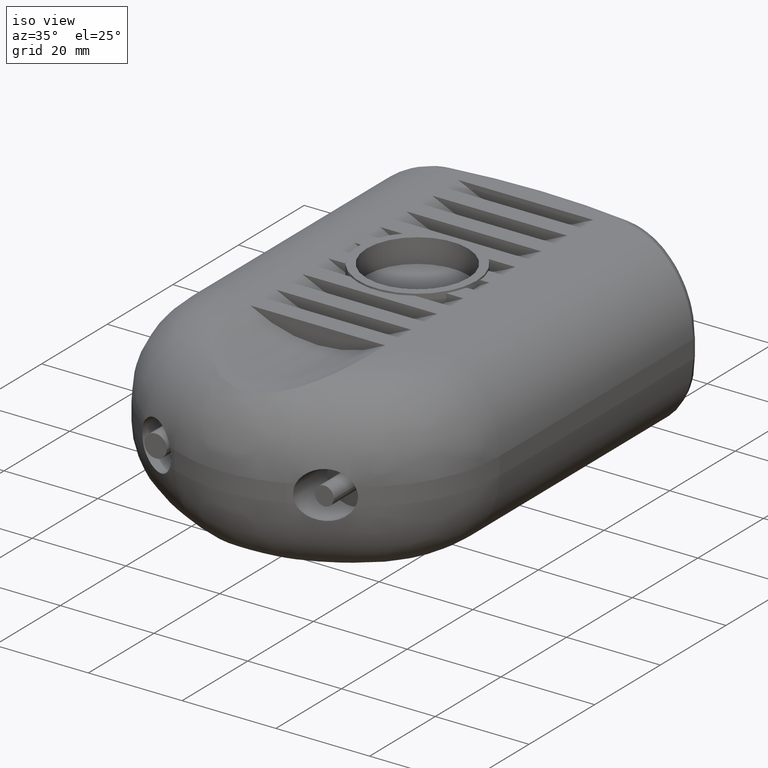
[diagram: clean part render]
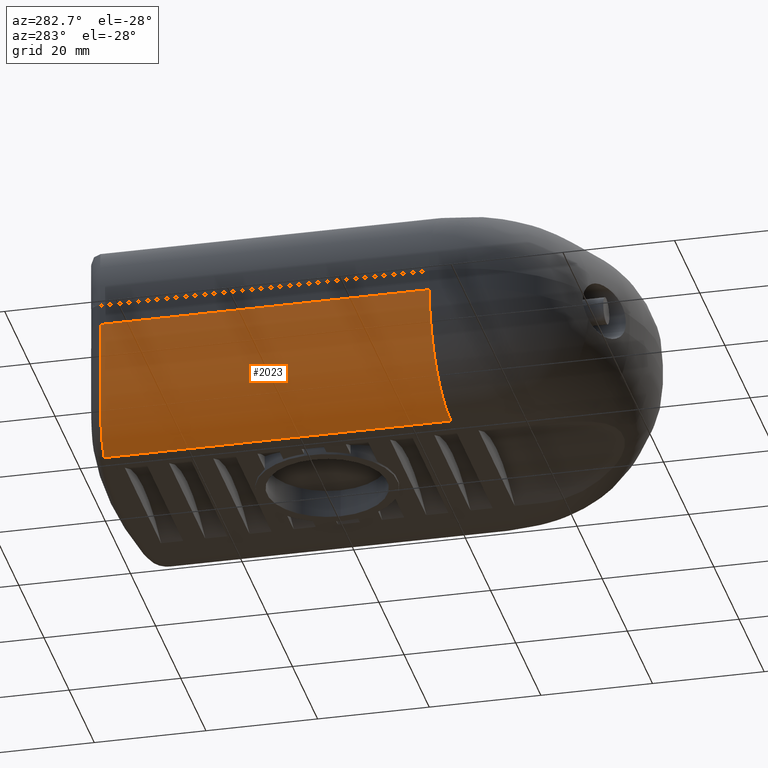
[diagram: tour spotlight — one face highlighted and labeled with its STEP entity id]
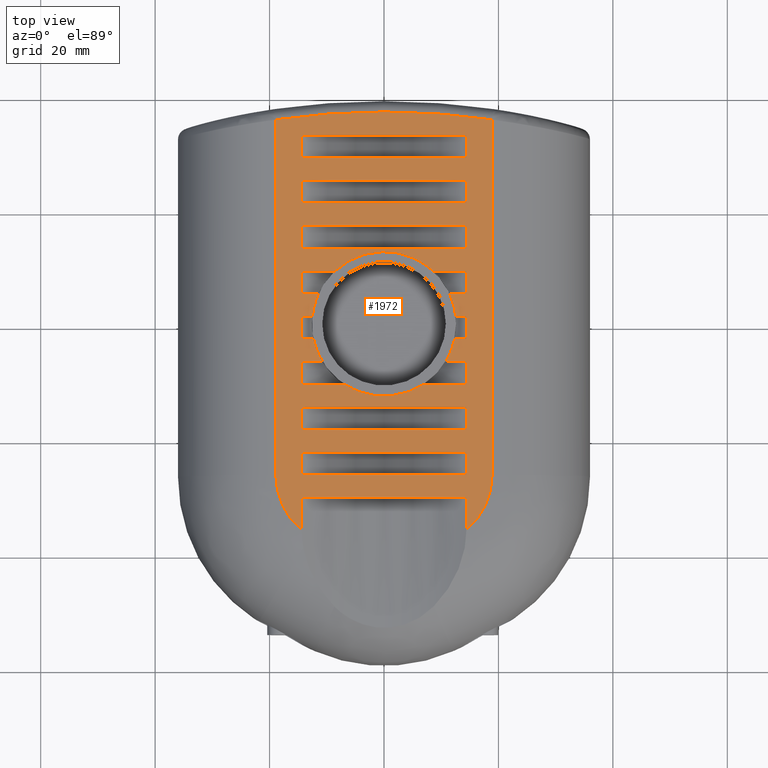
[diagram: tour spotlight — one face highlighted and labeled with its STEP entity id]
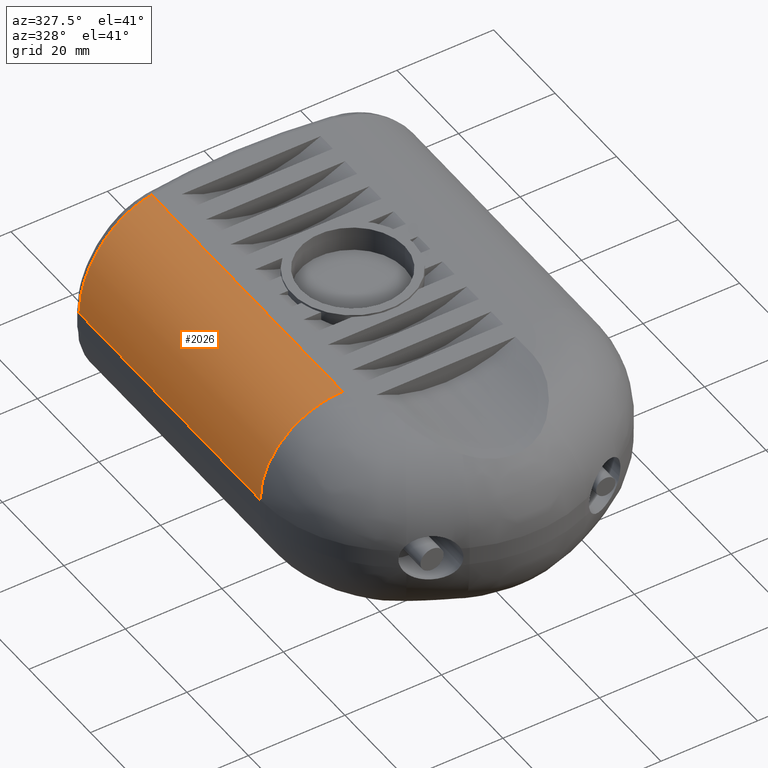
[diagram: tour spotlight — one face highlighted and labeled with its STEP entity id]
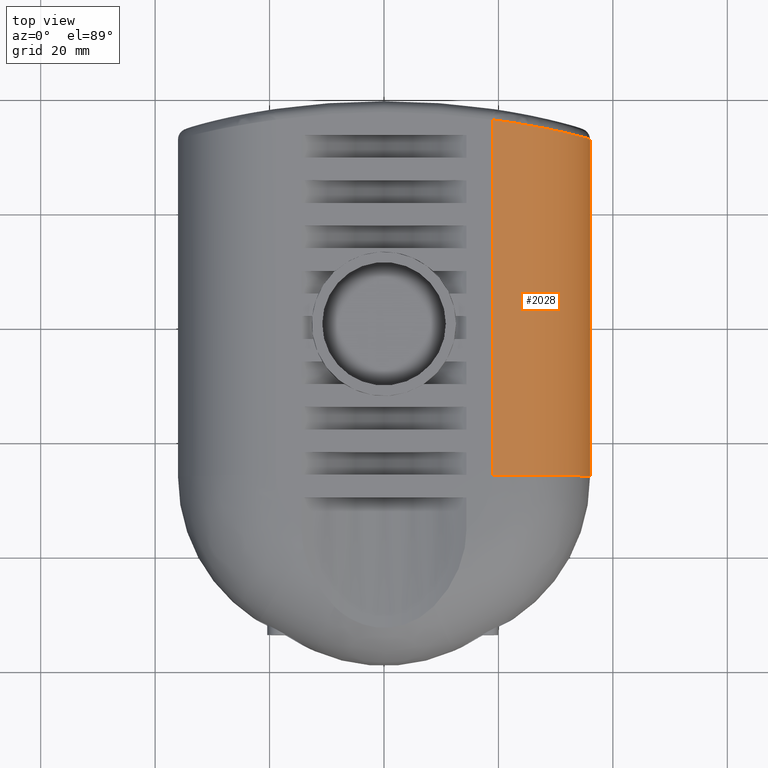
[diagram: tour spotlight — one face highlighted and labeled with its STEP entity id]
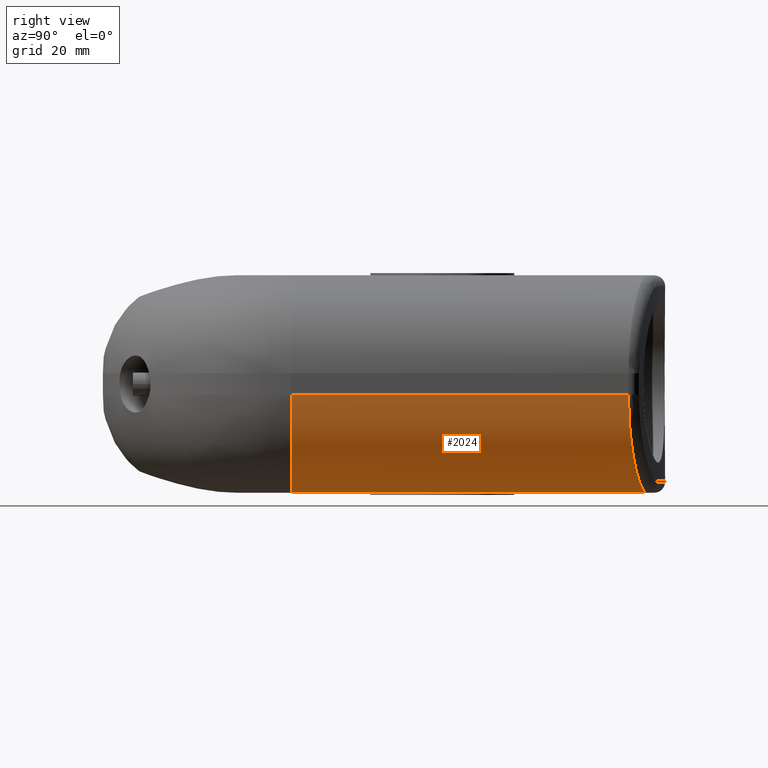
[diagram: tour spotlight — one face highlighted and labeled with its STEP entity id]
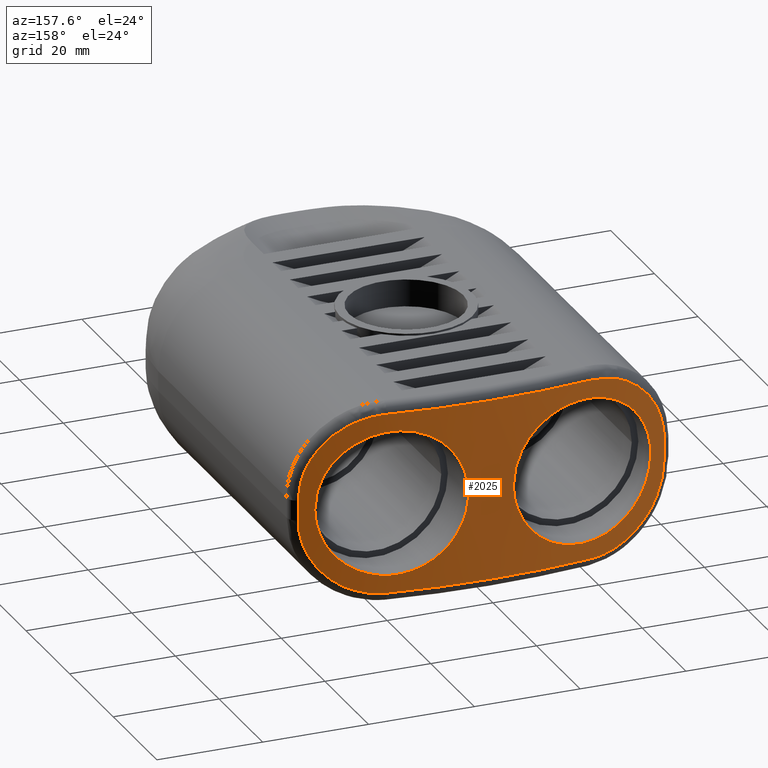
[diagram: tour spotlight — one face highlighted and labeled with its STEP entity id]
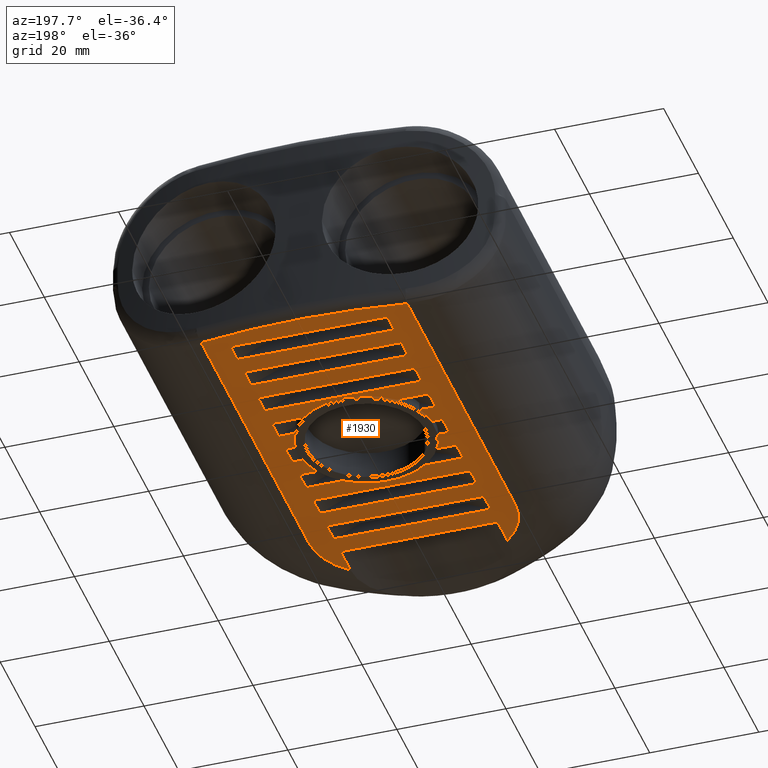
[diagram: tour spotlight — one face highlighted and labeled with its STEP entity id]
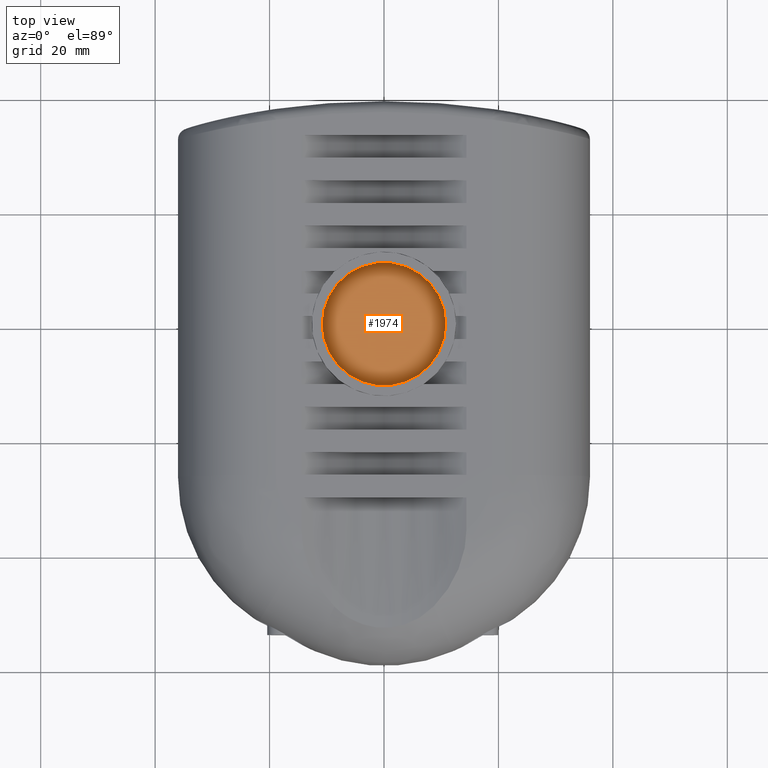
[diagram: tour spotlight — one face highlighted and labeled with its STEP entity id]
A machine part: a face-by-face anatomy tour. The part has 127 B-rep faces; the first image is the clean iso view, then the 8 largest visible faces are spotlighted one at a time (largest first), each with its STEP entity span.

Face 1 — auxiliary view, entity #2023. In plain terms, the highlighted cylindrical surface (partial cylindrical patch) has radius 17.1 mm, axis along (0, 1, 0).
Definition (entity closure, byte-faithful):
#22=LINE('',#3223,#144);
#135=LINE('',#3995,#257);
#144=VECTOR('',#2379,62.080994903224);
#257=VECTOR('',#2830,58.9476311031944);
#318=B_SPLINE_CURVE_WITH_KNOTS('',3,(#3978,#3979,#3980,#3981,#3982,#3983,
#3984),.UNSPECIFIED.,.F.,.F.,(4,1,1,1,4),(-2.41112647451124,-1.72223319607945,
-1.03333991764767,-0.344446639215891,0.),.UNSPECIFIED.);
#534=FACE_OUTER_BOUND('',#694,.T.);
#694=EDGE_LOOP('',(#1810,#1811,#1812,#1813));
#720=CIRCLE('',#2059,17.1);
#847=VERTEX_POINT('',#3082);
#848=VERTEX_POINT('',#3084);
#868=VERTEX_POINT('',#3222);
#1009=VERTEX_POINT('',#3937);
#1041=EDGE_CURVE('',#847,#848,#720,.T.);
#1064=EDGE_CURVE('',#868,#848,#22,.T.);
#1283=EDGE_CURVE('',#868,#1009,#318,.T.);
#1286=EDGE_CURVE('',#847,#1009,#135,.T.);
#1810=ORIENTED_EDGE('',*,*,#1283,.F.);
#1811=ORIENTED_EDGE('',*,*,#1064,.T.);
#1812=ORIENTED_EDGE('',*,*,#1041,.F.);
#1813=ORIENTED_EDGE('',*,*,#1286,.T.);
#1898=CYLINDRICAL_SURFACE('',#2257,17.1);
#2023=ADVANCED_FACE('',(#534),#1898,.T.);
#2059=AXIS2_PLACEMENT_3D('',#3085,#2319,#2320);
#2257=AXIS2_PLACEMENT_3D('',#3997,#2832,#2833);
#2319=DIRECTION('center_axis',(0.,-1.,0.));
#2320=DIRECTION('ref_axis',(-1.,0.,0.));
#2379=DIRECTION('',(0.,-1.,0.));
#2830=DIRECTION('',(0.,1.,0.));
#2832=DIRECTION('center_axis',(0.,1.,0.));
#2833=DIRECTION('ref_axis',(-0.707106781186548,0.,-0.707106781186548));
#3082=CARTESIAN_POINT('',(-36.,13.8535376133503,-1.9));
#3084=CARTESIAN_POINT('',(-18.9,13.8535376133503,-19.));
#3085=CARTESIAN_POINT('Origin',(-18.9,13.8535376133503,-1.9));
#3222=CARTESIAN_POINT('',(-18.9,75.9345325165743,-19.));
#3223=CARTESIAN_POINT('',(-18.9,53.8125717591919,-19.));
#3937=CARTESIAN_POINT('',(-36.,72.8011687165447,-1.9));
#3978=CARTESIAN_POINT('Ctrl Pts',(-18.9,75.9345325165743,-19.));
#3979=CARTESIAN_POINT('Ctrl Pts',(-21.4565216043528,75.6044524571456,-19.));
#3980=CARTESIAN_POINT('Ctrl Pts',(-26.5426085166814,74.818427720129,-17.8362413749663));
#3981=CARTESIAN_POINT('Ctrl Pts',(-32.6752682265483,73.5835013686501,-12.9863131610282));
#3982=CARTESIAN_POINT('Ctrl Pts',(-35.5622301423123,72.9051765267149,-7.07017439461922));
#3983=CARTESIAN_POINT('Ctrl Pts',(-36.,72.8011687165447,-3.19167489705956));
#3984=CARTESIAN_POINT('Ctrl Pts',(-36.,72.8011687165447,-1.9));
#3995=CARTESIAN_POINT('',(-36.,53.8125717591919,-1.9));
#3997=CARTESIAN_POINT('Origin',(-18.9,53.8125717591919,-1.9));

Face 2 — top view, entity #1972. In plain terms, the highlighted planar face has unit normal (0, 0, 1).
Definition (entity closure, byte-faithful):
#76=LINE('',#3489,#198);
#77=LINE('',#3493,#199);
#78=LINE('',#3496,#200);
#79=LINE('',#3498,#201);
#80=LINE('',#3499,#202);
#81=LINE('',#3502,#203);
#82=LINE('',#3504,#204);
#83=LINE('',#3506,#205);
#84=LINE('',#3507,#206);
#85=LINE('',#3510,#207);
#86=LINE('',#3512,#208);
#87=LINE('',#3514,#209);
#88=LINE('',#3515,#210);
#89=LINE('',#3518,#211);
#90=LINE('',#3520,#212);
#91=LINE('',#3522,#213);
#92=LINE('',#3523,#214);
#93=LINE('',#3526,#215);
#94=LINE('',#3528,#216);
#95=LINE('',#3530,#217);
#96=LINE('',#3531,#218);
#97=LINE('',#3534,#219);
#98=LINE('',#3536,#220);
#99=LINE('',#3538,#221);
#100=LINE('',#3539,#222);
#101=LINE('',#3544,#223);
#102=LINE('',#3546,#224);
#103=LINE('',#3548,#225);
#104=LINE('',#3552,#226);
#105=LINE('',#3554,#227);
#106=LINE('',#3556,#228);
#107=LINE('',#3560,#229);
#108=LINE('',#3562,#230);
#109=LINE('',#3564,#231);
#110=LINE('',#3568,#232);
#111=LINE('',#3570,#233);
#112=LINE('',#3572,#234);
#113=LINE('',#3576,#235);
#114=LINE('',#3578,#236);
#115=LINE('',#3580,#237);
#116=LINE('',#3584,#238);
#117=LINE('',#3586,#239);
#118=LINE('',#3587,#240);
#198=VECTOR('',#2587,5.69788715193693);
#199=VECTOR('',#2590,62.080994903224);
#200=VECTOR('',#2593,62.080994903224);
#201=VECTOR('',#2594,5.69788715193691);
#202=VECTOR('',#2595,28.8);
#203=VECTOR('',#2596,3.95999999999999);
#204=VECTOR('',#2597,28.8);
#205=VECTOR('',#2598,3.95999999999999);
#206=VECTOR('',#2599,28.8);
#207=VECTOR('',#2600,3.95999999999999);
#208=VECTOR('',#2601,28.8);
#209=VECTOR('',#2602,3.95999999999999);
#210=VECTOR('',#2603,28.8);
#211=VECTOR('',#2604,3.96000000000001);
#212=VECTOR('',#2605,28.8);
#213=VECTOR('',#2606,3.96000000000001);
#214=VECTOR('',#2607,28.8);
#215=VECTOR('',#2608,3.96);
#216=VECTOR('',#2609,28.8);
#217=VECTOR('',#2610,3.96);
#218=VECTOR('',#2611,28.8);
#219=VECTOR('',#2612,3.96);
#220=VECTOR('',#2613,28.8);
#221=VECTOR('',#2614,3.96);
#222=VECTOR('',#2615,28.8);
#223=VECTOR('',#2618,2.96430753017882);
#224=VECTOR('',#2619,3.96);
#225=VECTOR('',#2620,5.84453185646877);
#226=VECTOR('',#2623,5.84453185646877);
#227=VECTOR('',#2624,3.96);
#228=VECTOR('',#2625,2.96430753017882);
#229=VECTOR('',#2628,1.87039947270177);
#230=VECTOR('',#2629,3.96);
#231=VECTOR('',#2630,2.07751987289007);
#232=VECTOR('',#2633,3.66068234977817);
#233=VECTOR('',#2634,3.96);
#234=VECTOR('',#2635,7.51093832937219);
#235=VECTOR('',#2638,7.5109383293722);
#236=VECTOR('',#2639,3.96);
#237=VECTOR('',#2640,3.66068234977817);
#238=VECTOR('',#2643,2.07751987289008);
#239=VECTOR('',#2644,3.96);
#240=VECTOR('',#2645,1.87039947270178);
#355=PLANE('',#2164);
#407=FACE_BOUND('',#636,.T.);
#408=FACE_BOUND('',#637,.T.);
#409=FACE_BOUND('',#638,.T.);
#410=FACE_BOUND('',#639,.T.);
#411=FACE_BOUND('',#640,.T.);
#412=FACE_BOUND('',#641,.T.);
#483=FACE_OUTER_BOUND('',#635,.T.);
#635=EDGE_LOOP('',(#1570,#1571,#1572,#1573,#1574,#1575,#1576,#1577));
#636=EDGE_LOOP('',(#1578,#1579,#1580,#1581));
#637=EDGE_LOOP('',(#1582,#1583,#1584,#1585));
#638=EDGE_LOOP('',(#1586,#1587,#1588,#1589));
#639=EDGE_LOOP('',(#1590,#1591,#1592,#1593));
#640=EDGE_LOOP('',(#1594,#1595,#1596,#1597));
#641=EDGE_LOOP('',(#1598,#1599,#1600,#1601,#1602,#1603,#1604,#1605,#1606,
#1607,#1608,#1609,#1610,#1611,#1612,#1613,#1614,#1615,#1616,#1617,#1618,
#1619,#1620,#1621));
#725=CIRCLE('',#2065,12.6);
#773=CIRCLE('',#2165,12.6);
#774=CIRCLE('',#2166,131.484090909091);
#775=CIRCLE('',#2167,12.6);
#776=CIRCLE('',#2168,12.6);
#777=CIRCLE('',#2169,12.6);
#778=CIRCLE('',#2170,12.6);
#779=CIRCLE('',#2171,12.6);
#780=CIRCLE('',#2172,12.6);
#853=VERTEX_POINT('',#3109);
#854=VERTEX_POINT('',#3116);
#932=VERTEX_POINT('',#3487);
#933=VERTEX_POINT('',#3488);
#934=VERTEX_POINT('',#3490);
#935=VERTEX_POINT('',#3492);
#936=VERTEX_POINT('',#3494);
#937=VERTEX_POINT('',#3497);
#938=VERTEX_POINT('',#3500);
#939=VERTEX_POINT('',#3501);
#940=VERTEX_POINT('',#3503);
#941=VERTEX_POINT('',#3505);
#942=VERTEX_POINT('',#3508);
#943=VERTEX_POINT('',#3509);
#944=VERTEX_POINT('',#3511);
#945=VERTEX_POINT('',#3513);
#946=VERTEX_POINT('',#3516);
#947=VERTEX_POINT('',#3517);
#948=VERTEX_POINT('',#3519);
#949=VERTEX_POINT('',#3521);
#950=VERTEX_POINT('',#3524);
#951=VERTEX_POINT('',#3525);
#952=VERTEX_POINT('',#3527);
#953=VERTEX_POINT('',#3529);
#954=VERTEX_POINT('',#3532);
#955=VERTEX_POINT('',#3533);
#956=VERTEX_POINT('',#3535);
#957=VERTEX_POINT('',#3537);
#958=VERTEX_POINT('',#3540);
#959=VERTEX_POINT('',#3541);
#960=VERTEX_POINT('',#3543);
#961=VERTEX_POINT('',#3545);
#962=VERTEX_POINT('',#3547);
#963=VERTEX_POINT('',#3549);
#964=VERTEX_POINT('',#3551);
#965=VERTEX_POINT('',#3553);
#966=VERTEX_POINT('',#3555);
#967=VERTEX_POINT('',#3557);
#968=VERTEX_POINT('',#3559);
#969=VERTEX_POINT('',#3561);
#970=VERTEX_POINT('',#3563);
#971=VERTEX_POINT('',#3565);
#972=VERTEX_POINT('',#3567);
#973=VERTEX_POINT('',#3569);
#974=VERTEX_POINT('',#3571);
#975=VERTEX_POINT('',#3573);
#976=VERTEX_POINT('',#3575);
#977=VERTEX_POINT('',#3577);
#978=VERTEX_POINT('',#3579);
#979=VERTEX_POINT('',#3581);
#980=VERTEX_POINT('',#3583);
#981=VERTEX_POINT('',#3585);
#1049=EDGE_CURVE('',#853,#854,#725,.T.);
#1162=EDGE_CURVE('',#932,#933,#76,.T.);
#1163=EDGE_CURVE('',#934,#933,#773,.T.);
#1164=EDGE_CURVE('',#935,#934,#77,.T.);
#1165=EDGE_CURVE('',#936,#935,#774,.T.);
#1166=EDGE_CURVE('',#854,#936,#78,.T.);
#1167=EDGE_CURVE('',#853,#937,#79,.T.);
#1168=EDGE_CURVE('',#937,#932,#80,.T.);
#1169=EDGE_CURVE('',#938,#939,#81,.T.);
#1170=EDGE_CURVE('',#939,#940,#82,.T.);
#1171=EDGE_CURVE('',#940,#941,#83,.T.);
#1172=EDGE_CURVE('',#941,#938,#84,.T.);
#1173=EDGE_CURVE('',#942,#943,#85,.T.);
#1174=EDGE_CURVE('',#943,#944,#86,.T.);
#1175=EDGE_CURVE('',#944,#945,#87,.T.);
#1176=EDGE_CURVE('',#945,#942,#88,.T.);
#1177=EDGE_CURVE('',#946,#947,#89,.T.);
#1178=EDGE_CURVE('',#947,#948,#90,.T.);
#1179=EDGE_CURVE('',#948,#949,#91,.T.);
#1180=EDGE_CURVE('',#949,#946,#92,.T.);
#1181=EDGE_CURVE('',#950,#951,#93,.T.);
#1182=EDGE_CURVE('',#951,#952,#94,.T.);
#1183=EDGE_CURVE('',#952,#953,#95,.T.);
#1184=EDGE_CURVE('',#953,#950,#96,.T.);
#1185=EDGE_CURVE('',#954,#955,#97,.T.);
#1186=EDGE_CURVE('',#955,#956,#98,.T.);
#1187=EDGE_CURVE('',#956,#957,#99,.T.);
#1188=EDGE_CURVE('',#957,#954,#100,.T.);
#1189=EDGE_CURVE('',#958,#959,#775,.T.);
#1190=EDGE_CURVE('',#959,#960,#101,.T.);
#1191=EDGE_CURVE('',#960,#961,#102,.T.);
#1192=EDGE_CURVE('',#961,#962,#103,.T.);
#1193=EDGE_CURVE('',#962,#963,#776,.T.);
#1194=EDGE_CURVE('',#963,#964,#104,.T.);
#1195=EDGE_CURVE('',#964,#965,#105,.T.);
#1196=EDGE_CURVE('',#965,#966,#106,.T.);
#1197=EDGE_CURVE('',#966,#967,#777,.T.);
#1198=EDGE_CURVE('',#967,#968,#107,.T.);
#1199=EDGE_CURVE('',#968,#969,#108,.T.);
#1200=EDGE_CURVE('',#969,#970,#109,.T.);
#1201=EDGE_CURVE('',#970,#971,#778,.T.);
#1202=EDGE_CURVE('',#971,#972,#110,.T.);
#1203=EDGE_CURVE('',#972,#973,#111,.T.);
#1204=EDGE_CURVE('',#973,#974,#112,.T.);
#1205=EDGE_CURVE('',#974,#975,#779,.T.);
#1206=EDGE_CURVE('',#975,#976,#113,.T.);
#1207=EDGE_CURVE('',#976,#977,#114,.T.);
#1208=EDGE_CURVE('',#977,#978,#115,.T.);
#1209=EDGE_CURVE('',#978,#979,#780,.T.);
#1210=EDGE_CURVE('',#979,#980,#116,.T.);
#1211=EDGE_CURVE('',#980,#981,#117,.T.);
#1212=EDGE_CURVE('',#981,#958,#118,.T.);
#1570=ORIENTED_EDGE('',*,*,#1162,.T.);
#1571=ORIENTED_EDGE('',*,*,#1163,.F.);
#1572=ORIENTED_EDGE('',*,*,#1164,.F.);
#1573=ORIENTED_EDGE('',*,*,#1165,.F.);
#1574=ORIENTED_EDGE('',*,*,#1166,.F.);
#1575=ORIENTED_EDGE('',*,*,#1049,.F.);
#1576=ORIENTED_EDGE('',*,*,#1167,.T.);
#1577=ORIENTED_EDGE('',*,*,#1168,.T.);
#1578=ORIENTED_EDGE('',*,*,#1169,.T.);
#1579=ORIENTED_EDGE('',*,*,#1170,.T.);
#1580=ORIENTED_EDGE('',*,*,#1171,.T.);
#1581=ORIENTED_EDGE('',*,*,#1172,.T.);
#1582=ORIENTED_EDGE('',*,*,#1173,.T.);
#1583=ORIENTED_EDGE('',*,*,#1174,.T.);
#1584=ORIENTED_EDGE('',*,*,#1175,.T.);
#1585=ORIENTED_EDGE('',*,*,#1176,.T.);
#1586=ORIENTED_EDGE('',*,*,#1177,.T.);
#1587=ORIENTED_EDGE('',*,*,#1178,.T.);
#1588=ORIENTED_EDGE('',*,*,#1179,.T.);
#1589=ORIENTED_EDGE('',*,*,#1180,.T.);
#1590=ORIENTED_EDGE('',*,*,#1181,.T.);
#1591=ORIENTED_EDGE('',*,*,#1182,.T.);
#1592=ORIENTED_EDGE('',*,*,#1183,.T.);
#1593=ORIENTED_EDGE('',*,*,#1184,.T.);
#1594=ORIENTED_EDGE('',*,*,#1185,.T.);
#1595=ORIENTED_EDGE('',*,*,#1186,.T.);
#1596=ORIENTED_EDGE('',*,*,#1187,.T.);
#1597=ORIENTED_EDGE('',*,*,#1188,.T.);
#1598=ORIENTED_EDGE('',*,*,#1189,.T.);
#1599=ORIENTED_EDGE('',*,*,#1190,.T.);
#1600=ORIENTED_EDGE('',*,*,#1191,.T.);
#1601=ORIENTED_EDGE('',*,*,#1192,.T.);
#1602=ORIENTED_EDGE('',*,*,#1193,.T.);
#1603=ORIENTED_EDGE('',*,*,#1194,.T.);
#1604=ORIENTED_EDGE('',*,*,#1195,.T.);
#1605=ORIENTED_EDGE('',*,*,#1196,.T.);
#1606=ORIENTED_EDGE('',*,*,#1197,.T.);
#1607=ORIENTED_EDGE('',*,*,#1198,.T.);
#1608=ORIENTED_EDGE('',*,*,#1199,.T.);
#1609=ORIENTED_EDGE('',*,*,#1200,.T.);
#1610=ORIENTED_EDGE('',*,*,#1201,.T.);
#1611=ORIENTED_EDGE('',*,*,#1202,.T.);
#1612=ORIENTED_EDGE('',*,*,#1203,.T.);
#1613=ORIENTED_EDGE('',*,*,#1204,.T.);
#1614=ORIENTED_EDGE('',*,*,#1205,.T.);
#1615=ORIENTED_EDGE('',*,*,#1206,.T.);
#1616=ORIENTED_EDGE('',*,*,#1207,.T.);
#1617=ORIENTED_EDGE('',*,*,#1208,.T.);
#1618=ORIENTED_EDGE('',*,*,#1209,.T.);
#1619=ORIENTED_EDGE('',*,*,#1210,.T.);
#1620=ORIENTED_EDGE('',*,*,#1211,.T.);
#1621=ORIENTED_EDGE('',*,*,#1212,.T.);
#1972=ADVANCED_FACE('',(#483,#407,#408,#409,#410,#411,#412),#355,.T.);
#2065=AXIS2_PLACEMENT_3D('',#3117,#2332,#2333);
#2164=AXIS2_PLACEMENT_3D('',#3486,#2585,#2586);
#2165=AXIS2_PLACEMENT_3D('',#3491,#2588,#2589);
#2166=AXIS2_PLACEMENT_3D('',#3495,#2591,#2592);
#2167=AXIS2_PLACEMENT_3D('',#3542,#2616,#2617);
#2168=AXIS2_PLACEMENT_3D('',#3550,#2621,#2622);
#2169=AXIS2_PLACEMENT_3D('',#3558,#2626,#2627);
#2170=AXIS2_PLACEMENT_3D('',#3566,#2631,#2632);
#2171=AXIS2_PLACEMENT_3D('',#3574,#2636,#2637);
#2172=AXIS2_PLACEMENT_3D('',#3582,#2641,#2642);
#2332=DIRECTION('center_axis',(0.,0.,-1.));
#2333=DIRECTION('ref_axis',(-0.872453462282935,-0.488697202928889,0.));
#2585=DIRECTION('center_axis',(0.,0.,1.));
#2586=DIRECTION('ref_axis',(1.,0.,0.));
#2587=DIRECTION('',(0.,-1.,0.));
#2588=DIRECTION('center_axis',(0.,0.,-1.));
#2589=DIRECTION('ref_axis',(0.872453462282935,-0.488697202928889,0.));
#2590=DIRECTION('',(-5.93972607329229E-17,-1.,0.));
#2591=DIRECTION('center_axis',(0.,0.,-1.));
#2592=DIRECTION('ref_axis',(2.99646146808814E-16,1.,0.));
#2593=DIRECTION('',(0.,1.,0.));
#2594=DIRECTION('',(0.,1.,0.));
#2595=DIRECTION('',(1.,9.75260917545091E-18,0.));
#2596=DIRECTION('',(0.,1.,0.));
#2597=DIRECTION('',(1.,0.,0.));
#2598=DIRECTION('',(0.,-1.,0.));
#2599=DIRECTION('',(-1.,0.,0.));
#2600=DIRECTION('',(0.,1.,0.));
#2601=DIRECTION('',(1.,0.,0.));
#2602=DIRECTION('',(0.,-1.,0.));
#2603=DIRECTION('',(-1.,0.,0.));
#2604=DIRECTION('',(0.,1.,0.));
#2605=DIRECTION('',(1.,0.,0.));
#2606=DIRECTION('',(0.,-1.,0.));
#2607=DIRECTION('',(-1.,0.,0.));
#2608=DIRECTION('',(0.,1.,0.));
#2609=DIRECTION('',(1.,0.,0.));
#2610=DIRECTION('',(0.,-1.,0.));
#2611=DIRECTION('',(-1.,0.,0.));
#2612=DIRECTION('',(0.,1.,0.));
#2613=DIRECTION('',(1.,0.,0.));
#2614=DIRECTION('',(0.,-1.,0.));
#2615=DIRECTION('',(-1.,0.,0.));
#2616=DIRECTION('center_axis',(0.,0.,-1.));
#2617=DIRECTION('ref_axis',(-1.,0.,0.));
#2618=DIRECTION('',(-1.,0.,0.));
#2619=DIRECTION('',(0.,1.,0.));
#2620=DIRECTION('',(1.,0.,0.));
#2621=DIRECTION('center_axis',(0.,0.,-1.));
#2622=DIRECTION('ref_axis',(-1.,0.,0.));
#2623=DIRECTION('',(1.,0.,0.));
#2624=DIRECTION('',(0.,-1.,0.));
#2625=DIRECTION('',(-1.,0.,0.));
#2626=DIRECTION('center_axis',(0.,0.,-1.));
#2627=DIRECTION('ref_axis',(-1.,0.,0.));
#2628=DIRECTION('',(1.,0.,0.));
#2629=DIRECTION('',(0.,-1.,0.));
#2630=DIRECTION('',(-1.,0.,0.));
#2631=DIRECTION('center_axis',(0.,0.,-1.));
#2632=DIRECTION('ref_axis',(-1.,0.,0.));
#2633=DIRECTION('',(1.,0.,0.));
#2634=DIRECTION('',(0.,-1.,0.));
#2635=DIRECTION('',(-1.,0.,0.));
#2636=DIRECTION('center_axis',(0.,0.,-1.));
#2637=DIRECTION('ref_axis',(-1.,0.,0.));
#2638=DIRECTION('',(-1.,0.,0.));
#2639=DIRECTION('',(0.,1.,0.));
#2640=DIRECTION('',(1.,0.,0.));
#2641=DIRECTION('center_axis',(0.,0.,-1.));
#2642=DIRECTION('ref_axis',(-1.,0.,0.));
#2643=DIRECTION('',(-1.,0.,0.));
#2644=DIRECTION('',(0.,1.,0.));
#2645=DIRECTION('',(1.,0.,0.));
#3109=CARTESIAN_POINT('',(-14.4,4.20211284806309,19.));
#3116=CARTESIAN_POINT('',(-18.9,13.8535376133503,19.));
#3117=CARTESIAN_POINT('Origin',(-6.30000000000001,13.8535376133503,19.));
#3486=CARTESIAN_POINT('Origin',(5.19059241573712E-15,33.3751435183838,19.));
#3487=CARTESIAN_POINT('',(14.4,9.9,19.));
#3488=CARTESIAN_POINT('',(14.4,4.20211284806308,19.));
#3489=CARTESIAN_POINT('',(14.4,-19.8,19.));
#3490=CARTESIAN_POINT('',(18.9,13.8535376133503,19.));
#3491=CARTESIAN_POINT('Origin',(6.30000000000001,13.8535376133503,19.));
#3492=CARTESIAN_POINT('',(18.9,75.9345325165744,19.));
#3493=CARTESIAN_POINT('',(18.9,16.4296012004241,19.));
#3494=CARTESIAN_POINT('',(-18.9,75.9345325165744,19.));
#3495=CARTESIAN_POINT('Origin',(0.,-54.1840909090907,19.));
#3496=CARTESIAN_POINT('',(-18.9,53.8125717591919,19.));
#3497=CARTESIAN_POINT('',(-14.4,9.9,19.));
#3498=CARTESIAN_POINT('',(-14.4,-19.8,19.));
#3499=CARTESIAN_POINT('',(1.10118249238454E-15,9.9,19.));
#3500=CARTESIAN_POINT('',(-14.4,69.3,19.));
#3501=CARTESIAN_POINT('',(-14.4,73.26,19.));
#3502=CARTESIAN_POINT('',(-14.4,69.3,19.));
#3503=CARTESIAN_POINT('',(14.4,73.26,19.));
#3504=CARTESIAN_POINT('',(-1.50122458232624E-15,73.26,19.));
#3505=CARTESIAN_POINT('',(14.4,69.3,19.));
#3506=CARTESIAN_POINT('',(14.4,69.3,19.));
#3507=CARTESIAN_POINT('',(-1.50122458232624E-15,69.3,19.));
#3508=CARTESIAN_POINT('',(-14.4,61.38,19.));
#3509=CARTESIAN_POINT('',(-14.4,65.34,19.));
#3510=CARTESIAN_POINT('',(-14.4,61.38,19.));
#3511=CARTESIAN_POINT('',(14.4,65.34,19.));
#3512=CARTESIAN_POINT('',(-1.50122458232624E-15,65.34,19.));
#3513=CARTESIAN_POINT('',(14.4,61.38,19.));
#3514=CARTESIAN_POINT('',(14.4,61.38,19.));
#3515=CARTESIAN_POINT('',(-1.50122458232624E-15,61.38,19.));
#3516=CARTESIAN_POINT('',(-14.4,53.46,19.));
#3517=CARTESIAN_POINT('',(-14.4,57.42,19.));
#3518=CARTESIAN_POINT('',(-14.4,53.46,19.));
#3519=CARTESIAN_POINT('',(14.4,57.42,19.));
#3520=CARTESIAN_POINT('',(-1.50122458232624E-15,57.42,19.));
#3521=CARTESIAN_POINT('',(14.4,53.46,19.));
#3522=CARTESIAN_POINT('',(14.4,53.46,19.));
#3523=CARTESIAN_POINT('',(-1.50122458232624E-15,53.46,19.));
#3524=CARTESIAN_POINT('',(-14.4,21.78,19.));
#3525=CARTESIAN_POINT('',(-14.4,25.74,19.));
#3526=CARTESIAN_POINT('',(-14.4,21.78,19.));
#3527=CARTESIAN_POINT('',(14.4,25.74,19.));
#3528=CARTESIAN_POINT('',(-1.50122458232624E-15,25.74,19.));
#3529=CARTESIAN_POINT('',(14.4,21.78,19.));
#3530=CARTESIAN_POINT('',(14.4,21.78,19.));
#3531=CARTESIAN_POINT('',(-1.50122458232624E-15,21.78,19.));
#3532=CARTESIAN_POINT('',(-14.4,13.86,19.));
#3533=CARTESIAN_POINT('',(-14.4,17.82,19.));
#3534=CARTESIAN_POINT('',(-14.4,13.86,19.));
#3535=CARTESIAN_POINT('',(14.4,17.82,19.));
#3536=CARTESIAN_POINT('',(-1.50122458232624E-15,17.82,19.));
#3537=CARTESIAN_POINT('',(14.4,13.86,19.));
#3538=CARTESIAN_POINT('',(14.4,13.86,19.));
#3539=CARTESIAN_POINT('',(-1.50122458232624E-15,13.86,19.));
#3540=CARTESIAN_POINT('',(-12.5296005272982,41.58,19.));
#3541=CARTESIAN_POINT('',(-11.4356924698212,45.54,19.));
#3542=CARTESIAN_POINT('Origin',(0.,40.2499208195269,19.));
#3543=CARTESIAN_POINT('',(-14.4,45.54,19.));
#3544=CARTESIAN_POINT('',(-1.50122458232624E-15,45.54,19.));
#3545=CARTESIAN_POINT('',(-14.4,49.5,19.));
#3546=CARTESIAN_POINT('',(-14.4,45.54,19.));
#3547=CARTESIAN_POINT('',(-8.55546814353123,49.5,19.));
#3548=CARTESIAN_POINT('',(-1.50122458232624E-15,49.5,19.));
#3549=CARTESIAN_POINT('',(8.55546814353123,49.5,19.));
#3550=CARTESIAN_POINT('Origin',(0.,40.2499208195269,19.));
#3551=CARTESIAN_POINT('',(14.4,49.5,19.));
#3552=CARTESIAN_POINT('',(-1.50122458232624E-15,49.5,19.));
#3553=CARTESIAN_POINT('',(14.4,45.54,19.));
#3554=CARTESIAN_POINT('',(14.4,45.54,19.));
#3555=CARTESIAN_POINT('',(11.4356924698212,45.54,19.));
#3556=CARTESIAN_POINT('',(-1.50122458232624E-15,45.54,19.));
#3557=CARTESIAN_POINT('',(12.5296005272982,41.58,19.));
#3558=CARTESIAN_POINT('Origin',(0.,40.2499208195269,19.));
#3559=CARTESIAN_POINT('',(14.4,41.58,19.));
#3560=CARTESIAN_POINT('',(-1.50122458232624E-15,41.58,19.));
#3561=CARTESIAN_POINT('',(14.4,37.62,19.));
#3562=CARTESIAN_POINT('',(14.4,37.62,19.));
#3563=CARTESIAN_POINT('',(12.3224801271099,37.62,19.));
#3564=CARTESIAN_POINT('',(-1.50122458232624E-15,37.62,19.));
#3565=CARTESIAN_POINT('',(10.7393176502218,33.66,19.));
#3566=CARTESIAN_POINT('Origin',(0.,40.2499208195269,19.));
#3567=CARTESIAN_POINT('',(14.4,33.66,19.));
#3568=CARTESIAN_POINT('',(-1.50122458232624E-15,33.66,19.));
#3569=CARTESIAN_POINT('',(14.4,29.7,19.));
#3570=CARTESIAN_POINT('',(14.4,29.7,19.));
#3571=CARTESIAN_POINT('',(6.88906167062781,29.7,19.));
#3572=CARTESIAN_POINT('',(-1.50122458232624E-15,29.7,19.));
#3573=CARTESIAN_POINT('',(-6.88906167062781,29.7,19.));
#3574=CARTESIAN_POINT('Origin',(0.,40.2499208195269,19.));
#3575=CARTESIAN_POINT('',(-14.4,29.7,19.));
#3576=CARTESIAN_POINT('',(-1.50122458232624E-15,29.7,19.));
#3577=CARTESIAN_POINT('',(-14.4,33.66,19.));
#3578=CARTESIAN_POINT('',(-14.4,29.7,19.));
#3579=CARTESIAN_POINT('',(-10.7393176502218,33.66,19.));
#3580=CARTESIAN_POINT('',(-1.50122458232624E-15,33.66,19.));
#3581=CARTESIAN_POINT('',(-12.3224801271099,37.62,19.));
#3582=CARTESIAN_POINT('Origin',(0.,40.2499208195269,19.));
#3583=CARTESIAN_POINT('',(-14.4,37.62,19.));
#3584=CARTESIAN_POINT('',(-1.50122458232624E-15,37.62,19.));
#3585=CARTESIAN_POINT('',(-14.4,41.58,19.));
#3586=CARTESIAN_POINT('',(-14.4,37.62,19.));
#3587=CARTESIAN_POINT('',(-1.50122458232624E-15,41.58,19.));

Face 3 — auxiliary view, entity #2026. In plain terms, the highlighted cylindrical surface (partial cylindrical patch) has radius 17.1 mm, axis along (0, -1, 0).
Definition (entity closure, byte-faithful):
#78=LINE('',#3496,#200);
#136=LINE('',#3996,#258);
#200=VECTOR('',#2593,62.080994903224);
#258=VECTOR('',#2831,58.9476311031944);
#316=B_SPLINE_CURVE_WITH_KNOTS('',3,(#3921,#3922,#3923,#3924,#3925,#3926,
#3927),.UNSPECIFIED.,.F.,.F.,(4,1,1,1,4),(-2.41112758298336,-1.72223398784526,
-1.03334039270716,-0.688893595138104,0.),.UNSPECIFIED.);
#537=FACE_OUTER_BOUND('',#699,.T.);
#699=EDGE_LOOP('',(#1828,#1829,#1830,#1831));
#726=CIRCLE('',#2066,17.1);
#851=VERTEX_POINT('',#3095);
#854=VERTEX_POINT('',#3116);
#936=VERTEX_POINT('',#3494);
#1007=VERTEX_POINT('',#3919);
#1050=EDGE_CURVE('',#851,#854,#726,.T.);
#1166=EDGE_CURVE('',#854,#936,#78,.T.);
#1277=EDGE_CURVE('',#1007,#936,#316,.T.);
#1287=EDGE_CURVE('',#1007,#851,#136,.T.);
#1828=ORIENTED_EDGE('',*,*,#1277,.F.);
#1829=ORIENTED_EDGE('',*,*,#1287,.T.);
#1830=ORIENTED_EDGE('',*,*,#1050,.T.);
#1831=ORIENTED_EDGE('',*,*,#1166,.T.);
#1901=CYLINDRICAL_SURFACE('',#2260,17.1);
#2026=ADVANCED_FACE('',(#537),#1901,.T.);
#2066=AXIS2_PLACEMENT_3D('',#3118,#2334,#2335);
#2260=AXIS2_PLACEMENT_3D('',#4001,#2839,#2840);
#2334=DIRECTION('center_axis',(0.,1.,0.));
#2335=DIRECTION('ref_axis',(-1.,0.,0.));
#2593=DIRECTION('',(0.,1.,0.));
#2831=DIRECTION('',(0.,-1.,0.));
#2839=DIRECTION('center_axis',(0.,-1.,0.));
#2840=DIRECTION('ref_axis',(-0.707106781186548,0.,0.707106781186548));
#3095=CARTESIAN_POINT('',(-36.,13.8535376133503,1.9));
#3116=CARTESIAN_POINT('',(-18.9,13.8535376133503,19.));
#3118=CARTESIAN_POINT('Origin',(-18.9,13.8535376133503,1.9));
#3494=CARTESIAN_POINT('',(-18.9,75.9345325165744,19.));
#3496=CARTESIAN_POINT('',(-18.9,53.8125717591919,19.));
#3919=CARTESIAN_POINT('',(-36.,72.8011687165447,1.9));
#3921=CARTESIAN_POINT('Ctrl Pts',(-36.,72.8011687165447,1.9));
#3922=CARTESIAN_POINT('Ctrl Pts',(-36.,72.8011687165447,4.48335098176791));
#3923=CARTESIAN_POINT('Ctrl Pts',(-34.8029725817736,73.0947376774651,9.64453905997985));
#3924=CARTESIAN_POINT('Ctrl Pts',(-30.69466410951,73.9983090697709,14.7359787396152));
#3925=CARTESIAN_POINT('Ctrl Pts',(-25.2704360104691,75.0144529327161,18.1247780193473));
#3926=CARTESIAN_POINT('Ctrl Pts',(-21.4565227796676,75.6044523053972,19.));
#3927=CARTESIAN_POINT('Ctrl Pts',(-18.9,75.9345325165743,19.));
#3996=CARTESIAN_POINT('',(-36.,53.8125717591919,1.9));
#4001=CARTESIAN_POINT('Origin',(-18.9,53.8125717591919,1.9));

Face 4 — top view, entity #2028. In plain terms, the highlighted cylindrical surface (partial cylindrical patch) has radius 17.1 mm, axis along (0, 1, 0).
Definition (entity closure, byte-faithful):
#77=LINE('',#3493,#199);
#138=LINE('',#4015,#260);
#199=VECTOR('',#2590,62.080994903224);
#260=VECTOR('',#2847,58.9476311031944);
#314=B_SPLINE_CURVE_WITH_KNOTS('',3,(#3865,#3866,#3867,#3868,#3869,#3870,
#3871),.UNSPECIFIED.,.F.,.F.,(4,1,1,1,4),(-2.41112647451124,-1.72223319607946,
-1.03333991764767,-0.688893278431783,0.),.UNSPECIFIED.);
#539=FACE_OUTER_BOUND('',#701,.T.);
#701=EDGE_LOOP('',(#1838,#1839,#1840,#1841));
#821=CIRCLE('',#2262,17.1);
#934=VERTEX_POINT('',#3490);
#935=VERTEX_POINT('',#3492);
#1003=VERTEX_POINT('',#3824);
#1011=VERTEX_POINT('',#4011);
#1164=EDGE_CURVE('',#935,#934,#77,.T.);
#1272=EDGE_CURVE('',#935,#1003,#314,.T.);
#1290=EDGE_CURVE('',#1011,#934,#821,.T.);
#1291=EDGE_CURVE('',#1011,#1003,#138,.T.);
#1838=ORIENTED_EDGE('',*,*,#1272,.F.);
#1839=ORIENTED_EDGE('',*,*,#1164,.T.);
#1840=ORIENTED_EDGE('',*,*,#1290,.F.);
#1841=ORIENTED_EDGE('',*,*,#1291,.T.);
#1902=CYLINDRICAL_SURFACE('',#2263,17.1);
#2028=ADVANCED_FACE('',(#539),#1902,.T.);
#2262=AXIS2_PLACEMENT_3D('',#4013,#2843,#2844);
#2263=AXIS2_PLACEMENT_3D('',#4014,#2845,#2846);
#2590=DIRECTION('',(-5.93972607329229E-17,-1.,0.));
#2843=DIRECTION('center_axis',(0.,-1.,0.));
#2844=DIRECTION('ref_axis',(1.,0.,0.));
#2845=DIRECTION('center_axis',(5.93972607329229E-17,1.,0.));
#2846=DIRECTION('ref_axis',(0.707106781186547,0.,0.707106781186547));
#2847=DIRECTION('',(5.93972607329229E-17,1.,0.));
#3490=CARTESIAN_POINT('',(18.9,13.8535376133503,19.));
#3492=CARTESIAN_POINT('',(18.9,75.9345325165744,19.));
#3493=CARTESIAN_POINT('',(18.9,16.4296012004241,19.));
#3824=CARTESIAN_POINT('',(36.,72.8011687165447,1.9));
#3865=CARTESIAN_POINT('Ctrl Pts',(18.9,75.9345325165744,19.));
#3866=CARTESIAN_POINT('Ctrl Pts',(21.4565216043526,75.6044524571456,19.));
#3867=CARTESIAN_POINT('Ctrl Pts',(26.5445645103915,74.8174071168671,17.8376395917518));
#3868=CARTESIAN_POINT('Ctrl Pts',(31.6492833115711,73.7912388429344,13.7919721775457));
#3869=CARTESIAN_POINT('Ctrl Pts',(35.1006435376796,73.0209108320798,8.35046335280234));
#3870=CARTESIAN_POINT('Ctrl Pts',(36.,72.8011687165447,4.48334979411913));
#3871=CARTESIAN_POINT('Ctrl Pts',(36.,72.8011687165447,1.9));
#4011=CARTESIAN_POINT('',(36.,13.8535376133503,1.9));
#4013=CARTESIAN_POINT('Origin',(18.9,13.8535376133503,1.9));
#4014=CARTESIAN_POINT('Origin',(18.9,16.4296012004241,1.9));
#4015=CARTESIAN_POINT('',(36.,16.4296012004241,1.9));

Face 5 — right view, entity #2024. In plain terms, the highlighted cylindrical surface (partial cylindrical patch) has radius 17.1 mm, axis along (-0, -1, 0).
Definition (entity closure, byte-faithful):
#23=LINE('',#3226,#145);
#137=LINE('',#3999,#259);
#145=VECTOR('',#2382,62.080994903224);
#259=VECTOR('',#2836,58.9476311031944);
#312=B_SPLINE_CURVE_WITH_KNOTS('',3,(#3806,#3807,#3808,#3809,#3810,#3811,
#3812),.UNSPECIFIED.,.F.,.F.,(4,1,1,1,4),(-2.41112647451124,-1.72223319607946,
-1.03333991764767,-0.688893278431783,0.),.UNSPECIFIED.);
#535=FACE_OUTER_BOUND('',#695,.T.);
#695=EDGE_LOOP('',(#1814,#1815,#1816,#1817));
#714=CIRCLE('',#2051,17.1);
#842=VERTEX_POINT('',#3051);
#843=VERTEX_POINT('',#3053);
#869=VERTEX_POINT('',#3224);
#1000=VERTEX_POINT('',#3804);
#1033=EDGE_CURVE('',#843,#842,#714,.T.);
#1066=EDGE_CURVE('',#842,#869,#23,.T.);
#1265=EDGE_CURVE('',#1000,#869,#312,.T.);
#1288=EDGE_CURVE('',#1000,#843,#137,.T.);
#1814=ORIENTED_EDGE('',*,*,#1265,.F.);
#1815=ORIENTED_EDGE('',*,*,#1288,.T.);
#1816=ORIENTED_EDGE('',*,*,#1033,.T.);
#1817=ORIENTED_EDGE('',*,*,#1066,.T.);
#1899=CYLINDRICAL_SURFACE('',#2258,17.1);
#2024=ADVANCED_FACE('',(#535),#1899,.T.);
#2051=AXIS2_PLACEMENT_3D('',#3054,#2302,#2303);
#2258=AXIS2_PLACEMENT_3D('',#3998,#2834,#2835);
#2302=DIRECTION('center_axis',(0.,1.,0.));
#2303=DIRECTION('ref_axis',(1.,0.,0.));
#2382=DIRECTION('',(5.93972607329229E-17,1.,0.));
#2834=DIRECTION('center_axis',(-5.93972607329229E-17,-1.,0.));
#2835=DIRECTION('ref_axis',(0.707106781186547,0.,-0.707106781186547));
#2836=DIRECTION('',(-5.93972607329229E-17,-1.,0.));
#3051=CARTESIAN_POINT('',(18.9,13.8535376133503,-19.));
#3053=CARTESIAN_POINT('',(36.,13.8535376133503,-1.9));
#3054=CARTESIAN_POINT('Origin',(18.9,13.8535376133503,-1.9));
#3224=CARTESIAN_POINT('',(18.9,75.9345325165744,-19.));
#3226=CARTESIAN_POINT('',(18.9,16.4296012004241,-19.));
#3804=CARTESIAN_POINT('',(36.,72.8011687165447,-1.9));
#3806=CARTESIAN_POINT('Ctrl Pts',(36.,72.8011687165447,-1.9));
#3807=CARTESIAN_POINT('Ctrl Pts',(36.,72.8011687165447,-4.48334979411912));
#3808=CARTESIAN_POINT('Ctrl Pts',(34.8027764815192,73.0947842163213,-9.64495010138546));
#3809=CARTESIAN_POINT('Ctrl Pts',(30.6944535413318,73.9983535592502,-14.7361234270073));
#3810=CARTESIAN_POINT('Ctrl Pts',(25.2702052252924,75.014491979247,-18.1248682513003));
#3811=CARTESIAN_POINT('Ctrl Pts',(21.4565216043527,75.6044524571456,-19.));
#3812=CARTESIAN_POINT('Ctrl Pts',(18.9,75.9345325165744,-19.));
#3998=CARTESIAN_POINT('Origin',(18.9,16.4296012004241,-1.9));
#3999=CARTESIAN_POINT('',(36.,16.4296012004241,-1.9));

Face 6 — auxiliary view, entity #2025. In plain terms, the highlighted cylindrical surface (partial cylindrical patch) has radius 133.384 mm, axis along (0, 0, 1).
Definition (entity closure, byte-faithful):
#132=LINE('',#3827,#254);
#134=LINE('',#3940,#256);
#254=VECTOR('',#2805,3.8);
#256=VECTOR('',#2821,3.8);
#292=B_SPLINE_CURVE_WITH_KNOTS('',3,(#3126,#3127,#3128,#3129,#3130,#3131,
#3132,#3133,#3134,#3135,#3136,#3137,#3138,#3139,#3140,#3141,#3142,#3143,
#3144,#3145,#3146,#3147,#3148,#3149,#3150,#3151,#3152,#3153,#3154,#3155,
#3156,#3157,#3158,#3159),.UNSPECIFIED.,.T.,.F.,(4,2,2,2,2,2,2,2,2,2,2,2,
2,2,2,2,4),(0.,0.517811243920953,1.03562248784191,1.5561506466662,2.0766788054905,
2.60299384883886,3.12930889218723,3.64773643640668,4.16616398062612,4.68459152484557,
5.20301906906501,5.72933411241338,6.25564915576175,6.77617731458604,7.29670547341034,
7.81451671733129,8.33232796125224),.UNSPECIFIED.);
#293=B_SPLINE_CURVE_WITH_KNOTS('',3,(#3167,#3168,#3169,#3170,#3171,#3172,
#3173,#3174,#3175,#3176,#3177,#3178,#3179,#3180,#3181,#3182,#3183,#3184,
#3185,#3186,#3187,#3188,#3189,#3190,#3191,#3192,#3193,#3194,#3195,#3196,
#3197,#3198,#3199,#3200),.UNSPECIFIED.,.T.,.F.,(4,2,2,2,2,2,2,2,2,2,2,2,
2,2,2,2,4),(0.,0.518427544219446,1.03685508843889,1.56317013178726,2.08948517513562,
2.61001333395992,3.13054149278422,3.64835273670517,4.16616398062612,4.68397522454707,
5.20178646846803,5.72231462729232,6.24284278611662,6.76915782946499,7.29547287281335,
7.8139004170328,8.33232796125225),.UNSPECIFIED.);
#313=B_SPLINE_CURVE_WITH_KNOTS('',3,(#3815,#3816,#3817,#3818,#3819,#3820,
#3821),.UNSPECIFIED.,.F.,.F.,(4,1,1,1,4),(0.,0.688893278431783,1.03333991764767,
1.72223319607946,2.41112647451124),.UNSPECIFIED.);
#315=B_SPLINE_CURVE_WITH_KNOTS('',3,(#3872,#3873,#3874,#3875,#3876,#3877,
#3878),.UNSPECIFIED.,.F.,.F.,(4,1,1,1,4),(0.,0.688893278431783,1.03333991764767,
1.72223319607946,2.41112647451124),.UNSPECIFIED.);
#317=B_SPLINE_CURVE_WITH_KNOTS('',3,(#3928,#3929,#3930,#3931,#3932,#3933,
#3934),.UNSPECIFIED.,.F.,.F.,(4,1,1,1,4),(0.,0.688893595138104,1.03334039270716,
1.72223398784526,2.41112758298336),.UNSPECIFIED.);
#319=B_SPLINE_CURVE_WITH_KNOTS('',3,(#3985,#3986,#3987,#3988,#3989,#3990,
#3991),.UNSPECIFIED.,.F.,.F.,(4,1,1,1,4),(0.,0.344446639215891,1.03333991764767,
1.72223319607945,2.41112647451124),.UNSPECIFIED.);
#415=FACE_BOUND('',#697,.T.);
#416=FACE_BOUND('',#698,.T.);
#536=FACE_OUTER_BOUND('',#696,.T.);
#696=EDGE_LOOP('',(#1818,#1819,#1820,#1821,#1822,#1823,#1824,#1825));
#697=EDGE_LOOP('',(#1826));
#698=EDGE_LOOP('',(#1827));
#815=CIRCLE('',#2249,133.384090909091);
#819=CIRCLE('',#2255,133.384090909091);
#857=VERTEX_POINT('',#3125);
#860=VERTEX_POINT('',#3166);
#999=VERTEX_POINT('',#3803);
#1001=VERTEX_POINT('',#3813);
#1002=VERTEX_POINT('',#3823);
#1004=VERTEX_POINT('',#3863);
#1005=VERTEX_POINT('',#3880);
#1006=VERTEX_POINT('',#3918);
#1008=VERTEX_POINT('',#3936);
#1010=VERTEX_POINT('',#3976);
#1053=EDGE_CURVE('',#857,#857,#292,.T.);
#1056=EDGE_CURVE('',#860,#860,#293,.T.);
#1267=EDGE_CURVE('',#1001,#999,#313,.T.);
#1270=EDGE_CURVE('',#999,#1002,#132,.T.);
#1273=EDGE_CURVE('',#1002,#1004,#315,.T.);
#1275=EDGE_CURVE('',#1004,#1005,#815,.T.);
#1278=EDGE_CURVE('',#1005,#1006,#317,.T.);
#1281=EDGE_CURVE('',#1006,#1008,#134,.T.);
#1284=EDGE_CURVE('',#1008,#1010,#319,.T.);
#1285=EDGE_CURVE('',#1010,#1001,#819,.T.);
#1818=ORIENTED_EDGE('',*,*,#1267,.F.);
#1819=ORIENTED_EDGE('',*,*,#1285,.F.);
#1820=ORIENTED_EDGE('',*,*,#1284,.F.);
#1821=ORIENTED_EDGE('',*,*,#1281,.F.);
#1822=ORIENTED_EDGE('',*,*,#1278,.F.);
#1823=ORIENTED_EDGE('',*,*,#1275,.F.);
#1824=ORIENTED_EDGE('',*,*,#1273,.F.);
#1825=ORIENTED_EDGE('',*,*,#1270,.F.);
#1826=ORIENTED_EDGE('',*,*,#1053,.T.);
#1827=ORIENTED_EDGE('',*,*,#1056,.T.);
#1900=CYLINDRICAL_SURFACE('',#2259,133.384090909091);
#2025=ADVANCED_FACE('',(#536,#415,#416),#1900,.T.);
#2249=AXIS2_PLACEMENT_3D('',#3882,#2812,#2813);
#2255=AXIS2_PLACEMENT_3D('',#3993,#2826,#2827);
#2259=AXIS2_PLACEMENT_3D('',#4000,#2837,#2838);
#2805=DIRECTION('',(0.,0.,1.));
#2812=DIRECTION('center_axis',(0.,0.,1.));
#2813=DIRECTION('ref_axis',(2.99646146808814E-16,1.,0.));
#2821=DIRECTION('',(0.,0.,-1.));
#2826=DIRECTION('center_axis',(0.,0.,-1.));
#2827=DIRECTION('ref_axis',(2.99646146808814E-16,1.,0.));
#2837=DIRECTION('center_axis',(0.,0.,1.));
#2838=DIRECTION('ref_axis',(-0.269897255022236,-0.962889127434442,0.));
#3125=CARTESIAN_POINT('',(-4.25,79.1322742065416,5.55111512312578E-16));
#3126=CARTESIAN_POINT('Ctrl Pts',(-4.25,79.1322742065416,5.55111512312578E-16));
#3127=CARTESIAN_POINT('Ctrl Pts',(-4.25,79.1322742065416,1.72603747973651));
#3128=CARTESIAN_POINT('Ctrl Pts',(-4.59489647677749,79.1226791203977,3.56708801791549));
#3129=CARTESIAN_POINT('Ctrl Pts',(-5.99707486195055,79.0669620074711,6.95346707903556));
#3130=CARTESIAN_POINT('Ctrl Pts',(-7.05436102678437,79.0189229787936,8.49876202714491));
#3131=CARTESIAN_POINT('Ctrl Pts',(-9.4983562807018,78.8670415019513,10.9448301753672));
#3132=CARTESIAN_POINT('Ctrl Pts',(-11.0496563215334,78.7524450918493,12.0050934432667));
#3133=CARTESIAN_POINT('Ctrl Pts',(-14.4410019903154,78.4269002285342,13.407575391031));
#3134=CARTESIAN_POINT('Ctrl Pts',(-16.280777740976,78.2140304314557,13.75));
#3135=CARTESIAN_POINT('Ctrl Pts',(-19.7383354242112,77.7431302536139,13.75));
#3136=CARTESIAN_POINT('Ctrl Pts',(-21.5869774049519,77.4528803334635,13.4007232309878));
#3137=CARTESIAN_POINT('Ctrl Pts',(-24.9831211778692,76.8507649417162,11.9867346163321));
#3138=CARTESIAN_POINT('Ctrl Pts',(-26.5310222854006,76.5407485951511,10.922195083119));
#3139=CARTESIAN_POINT('Ctrl Pts',(-28.9584469967061,76.0243598744768,8.47912608721508));
#3140=CARTESIAN_POINT('Ctrl Pts',(-30.0082583631204,75.7825762058504,6.94259534796156));
#3141=CARTESIAN_POINT('Ctrl Pts',(-31.4042004514283,75.4523481456164,3.56725417516998));
#3142=CARTESIAN_POINT('Ctrl Pts',(-31.75,75.3661047976105,1.72809181406482));
#3143=CARTESIAN_POINT('Ctrl Pts',(-31.75,75.3661047976105,-1.72809181406482));
#3144=CARTESIAN_POINT('Ctrl Pts',(-31.4042004514283,75.4523481456164,-3.56725417516998));
#3145=CARTESIAN_POINT('Ctrl Pts',(-30.0082583631204,75.7825762058504,-6.94259534796156));
#3146=CARTESIAN_POINT('Ctrl Pts',(-28.9584469967061,76.0243598744768,-8.47912608721508));
#3147=CARTESIAN_POINT('Ctrl Pts',(-26.5310222854006,76.5407485951511,-10.922195083119));
#3148=CARTESIAN_POINT('Ctrl Pts',(-24.9831211778692,76.8507649417162,-11.9867346163321));
#3149=CARTESIAN_POINT('Ctrl Pts',(-21.5869774049519,77.4528803334635,-13.4007232309878));
#3150=CARTESIAN_POINT('Ctrl Pts',(-19.7383354242112,77.7431302536139,-13.75));
#3151=CARTESIAN_POINT('Ctrl Pts',(-16.280777740976,78.2140304314557,-13.75));
#3152=CARTESIAN_POINT('Ctrl Pts',(-14.4410019903154,78.4269002285342,-13.407575391031));
#3153=CARTESIAN_POINT('Ctrl Pts',(-11.0496563215334,78.7524450918493,-12.0050934432667));
#3154=CARTESIAN_POINT('Ctrl Pts',(-9.49835628070181,78.8670415019513,-10.9448301753672));
#3155=CARTESIAN_POINT('Ctrl Pts',(-7.05436102678438,79.0189229787936,-8.49876202714491));
#3156=CARTESIAN_POINT('Ctrl Pts',(-5.99707486195055,79.0669620074711,-6.95346707903557));
#3157=CARTESIAN_POINT('Ctrl Pts',(-4.59489647677749,79.1226791203977,-3.5670880179155));
#3158=CARTESIAN_POINT('Ctrl Pts',(-4.25,79.1322742065416,-1.72603747973651));
#3159=CARTESIAN_POINT('Ctrl Pts',(-4.25,79.1322742065416,-1.11022302462516E-15));
#3166=CARTESIAN_POINT('',(31.75,75.3661047976105,-5.55111512312578E-16));
#3167=CARTESIAN_POINT('Ctrl Pts',(31.75,75.3661047976105,-5.55111512312578E-16));
#3168=CARTESIAN_POINT('Ctrl Pts',(31.75,75.3661047976105,1.72809181406482));
#3169=CARTESIAN_POINT('Ctrl Pts',(31.4042004514283,75.4523481456164,3.56725417516998));
#3170=CARTESIAN_POINT('Ctrl Pts',(30.0082583631204,75.7825762058504,6.94259534796156));
#3171=CARTESIAN_POINT('Ctrl Pts',(28.9584469967061,76.0243598744768,8.47912608721508));
#3172=CARTESIAN_POINT('Ctrl Pts',(26.5310222854006,76.5407485951511,10.922195083119));
#3173=CARTESIAN_POINT('Ctrl Pts',(24.9831211778692,76.8507649417162,11.9867346163321));
#3174=CARTESIAN_POINT('Ctrl Pts',(21.5869774049519,77.4528803334635,13.4007232309878));
#3175=CARTESIAN_POINT('Ctrl Pts',(19.7383354242112,77.7431302536139,13.75));
#3176=CARTESIAN_POINT('Ctrl Pts',(16.280777740976,78.2140304314557,13.75));
#3177=CARTESIAN_POINT('Ctrl Pts',(14.4410019903154,78.4269002285342,13.407575391031));
#3178=CARTESIAN_POINT('Ctrl Pts',(11.0496563215334,78.7524450918493,12.0050934432667));
#3179=CARTESIAN_POINT('Ctrl Pts',(9.4983562807018,78.8670415019513,10.9448301753672));
#3180=CARTESIAN_POINT('Ctrl Pts',(7.05436102678438,79.0189229787936,8.49876202714491));
#3181=CARTESIAN_POINT('Ctrl Pts',(5.99707486195055,79.0669620074711,6.95346707903557));
#3182=CARTESIAN_POINT('Ctrl Pts',(4.59489647677749,79.1226791203977,3.5670880179155));
#3183=CARTESIAN_POINT('Ctrl Pts',(4.25,79.1322742065416,1.72603747973651));
#3184=CARTESIAN_POINT('Ctrl Pts',(4.25,79.1322742065416,-1.72603747973651));
#3185=CARTESIAN_POINT('Ctrl Pts',(4.59489647677749,79.1226791203977,-3.56708801791549));
#3186=CARTESIAN_POINT('Ctrl Pts',(5.99707486195055,79.0669620074711,-6.95346707903556));
#3187=CARTESIAN_POINT('Ctrl Pts',(7.05436102678437,79.0189229787936,-8.4987620271449));
#3188=CARTESIAN_POINT('Ctrl Pts',(9.4983562807018,78.8670415019513,-10.9448301753672));
#3189=CARTESIAN_POINT('Ctrl Pts',(11.0496563215334,78.7524450918493,-12.0050934432667));
#3190=CARTESIAN_POINT('Ctrl Pts',(14.4410019903154,78.4269002285342,-13.407575391031));
#3191=CARTESIAN_POINT('Ctrl Pts',(16.280777740976,78.2140304314557,-13.75));
#3192=CARTESIAN_POINT('Ctrl Pts',(19.7383354242112,77.7431302536139,-13.75));
#3193=CARTESIAN_POINT('Ctrl Pts',(21.5869774049519,77.4528803334635,-13.4007232309878));
#3194=CARTESIAN_POINT('Ctrl Pts',(24.9831211778692,76.8507649417162,-11.9867346163321));
#3195=CARTESIAN_POINT('Ctrl Pts',(26.5310222854006,76.5407485951512,-10.922195083119));
#3196=CARTESIAN_POINT('Ctrl Pts',(28.9584469967061,76.0243598744768,-8.47912608721509));
#3197=CARTESIAN_POINT('Ctrl Pts',(30.0082583631204,75.7825762058504,-6.94259534796157));
#3198=CARTESIAN_POINT('Ctrl Pts',(31.4042004514283,75.4523481456164,-3.56725417516998));
#3199=CARTESIAN_POINT('Ctrl Pts',(31.75,75.3661047976105,-1.72809181406482));
#3200=CARTESIAN_POINT('Ctrl Pts',(31.75,75.3661047976105,0.));
#3803=CARTESIAN_POINT('',(34.5927592346119,74.6361587265188,-1.9));
#3813=CARTESIAN_POINT('',(19.1731128895649,77.8148009414418,-17.1));
#3815=CARTESIAN_POINT('Ctrl Pts',(19.1731128895649,77.8148009414418,-17.1));
#3816=CARTESIAN_POINT('Ctrl Pts',(21.4784145862076,77.4799510873666,-17.1));
#3817=CARTESIAN_POINT('Ctrl Pts',(24.9173416450841,76.8814654342908,-16.3221051122669));
#3818=CARTESIAN_POINT('Ctrl Pts',(29.8085691726306,75.850643389951,-13.3098874906731));
#3819=CARTESIAN_POINT('Ctrl Pts',(33.5131824363109,74.9340170928332,-8.7844000901204));
#3820=CARTESIAN_POINT('Ctrl Pts',(34.5927592346119,74.6361587265188,-4.19631092810594));
#3821=CARTESIAN_POINT('Ctrl Pts',(34.5927592346119,74.6361587265188,-1.9));
#3823=CARTESIAN_POINT('',(34.5927592346119,74.6361587265188,1.9));
#3827=CARTESIAN_POINT('',(34.5927592346119,74.6361587265188,0.));
#3863=CARTESIAN_POINT('',(19.1731128895649,77.8148009414418,17.1));
#3872=CARTESIAN_POINT('Ctrl Pts',(34.5927592346119,74.6361587265188,1.9));
#3873=CARTESIAN_POINT('Ctrl Pts',(34.5927592346119,74.6361587265188,4.19631092810594));
#3874=CARTESIAN_POINT('Ctrl Pts',(33.7817792002777,74.8590762073519,7.63374520249097));
#3875=CARTESIAN_POINT('Ctrl Pts',(30.6695713584091,75.640535779527,12.4706419355961));
#3876=CARTESIAN_POINT('Ctrl Pts',(26.0664743639587,76.6815326133789,16.0667907482238));
#3877=CARTESIAN_POINT('Ctrl Pts',(21.4784145862076,77.4799510873666,17.1));
#3878=CARTESIAN_POINT('Ctrl Pts',(19.1731128895649,77.8148009414418,17.1));
#3880=CARTESIAN_POINT('',(-19.1731128895649,77.8148009414418,17.1));
#3882=CARTESIAN_POINT('Origin',(0.,-54.1840909090907,17.1));
#3918=CARTESIAN_POINT('',(-34.5927592346119,74.6361587265188,1.9));
#3928=CARTESIAN_POINT('Ctrl Pts',(-19.1731128895649,77.8148009414418,17.1));
#3929=CARTESIAN_POINT('Ctrl Pts',(-21.4784156460287,77.4799509334254,17.1));
#3930=CARTESIAN_POINT('Ctrl Pts',(-24.9175497518565,76.8814258235213,16.3220249060865));
#3931=CARTESIAN_POINT('Ctrl Pts',(-29.8087590490539,75.8505982575802,13.309758879658));
#3932=CARTESIAN_POINT('Ctrl Pts',(-33.5133592665198,74.9339698814711,8.78403471998208));
#3933=CARTESIAN_POINT('Ctrl Pts',(-34.5927592346119,74.6361587265188,4.19631198379368));
#3934=CARTESIAN_POINT('Ctrl Pts',(-34.5927592346119,74.6361587265188,1.9));
#3936=CARTESIAN_POINT('',(-34.5927592346119,74.6361587265188,-1.9));
#3940=CARTESIAN_POINT('',(-34.5927592346119,74.6361587265188,0.));
#3976=CARTESIAN_POINT('',(-19.1731128895649,77.8148009414418,-17.1));
#3985=CARTESIAN_POINT('Ctrl Pts',(-34.5927592346119,74.6361587265188,-1.9));
#3986=CARTESIAN_POINT('Ctrl Pts',(-34.5927592346119,74.6361587265188,-3.04815546405297));
#3987=CARTESIAN_POINT('Ctrl Pts',(-34.1980073991694,74.7416694929627,-6.49571057299485));
#3988=CARTESIAN_POINT('Ctrl Pts',(-31.5947365364384,75.429796412022,-11.7545005875806));
#3989=CARTESIAN_POINT('Ctrl Pts',(-26.0647105785048,76.6825679647841,-16.0655478888589));
#3990=CARTESIAN_POINT('Ctrl Pts',(-21.4784145862076,77.4799510873666,-17.1));
#3991=CARTESIAN_POINT('Ctrl Pts',(-19.1731128895649,77.8148009414418,-17.1));
#3993=CARTESIAN_POINT('Origin',(0.,-54.1840909090907,-17.1));
#4000=CARTESIAN_POINT('Origin',(0.,-54.1840909090907,0.));

Face 7 — auxiliary view, entity #1930. In plain terms, the highlighted planar face has unit normal (0, 0, 1).
Definition (entity closure, byte-faithful):
#21=LINE('',#3221,#143);
#22=LINE('',#3223,#144);
#23=LINE('',#3226,#145);
#24=LINE('',#3228,#146);
#25=LINE('',#3229,#147);
#26=LINE('',#3232,#148);
#27=LINE('',#3234,#149);
#28=LINE('',#3236,#150);
#29=LINE('',#3237,#151);
#30=LINE('',#3240,#152);
#31=LINE('',#3242,#153);
#32=LINE('',#3244,#154);
#33=LINE('',#3245,#155);
#34=LINE('',#3248,#156);
#35=LINE('',#3250,#157);
#36=LINE('',#3252,#158);
#37=LINE('',#3253,#159);
#38=LINE('',#3256,#160);
#39=LINE('',#3258,#161);
#40=LINE('',#3260,#162);
#41=LINE('',#3261,#163);
#42=LINE('',#3264,#164);
#43=LINE('',#3266,#165);
#44=LINE('',#3268,#166);
#45=LINE('',#3269,#167);
#46=LINE('',#3274,#168);
#47=LINE('',#3276,#169);
#48=LINE('',#3278,#170);
#49=LINE('',#3282,#171);
#50=LINE('',#3284,#172);
#51=LINE('',#3286,#173);
#52=LINE('',#3290,#174);
#53=LINE('',#3292,#175);
#54=LINE('',#3294,#176);
#55=LINE('',#3298,#177);
#56=LINE('',#3300,#178);
#57=LINE('',#3302,#179);
#58=LINE('',#3306,#180);
#59=LINE('',#3308,#181);
#60=LINE('',#3310,#182);
#61=LINE('',#3314,#183);
#62=LINE('',#3316,#184);
#63=LINE('',#3317,#185);
#143=VECTOR('',#2378,5.69788715193691);
#144=VECTOR('',#2379,62.080994903224);
#145=VECTOR('',#2382,62.080994903224);
#146=VECTOR('',#2383,5.69788715193693);
#147=VECTOR('',#2384,28.8);
#148=VECTOR('',#2385,3.95999999999999);
#149=VECTOR('',#2386,28.8);
#150=VECTOR('',#2387,3.95999999999999);
#151=VECTOR('',#2388,28.8);
#152=VECTOR('',#2389,3.95999999999999);
#153=VECTOR('',#2390,28.8);
#154=VECTOR('',#2391,3.95999999999999);
#155=VECTOR('',#2392,28.8);
#156=VECTOR('',#2393,3.96000000000001);
#157=VECTOR('',#2394,28.8);
#158=VECTOR('',#2395,3.96000000000001);
#159=VECTOR('',#2396,28.8);
#160=VECTOR('',#2397,3.96);
#161=VECTOR('',#2398,28.8);
#162=VECTOR('',#2399,3.96);
#163=VECTOR('',#2400,28.8);
#164=VECTOR('',#2401,3.96);
#165=VECTOR('',#2402,28.8);
#166=VECTOR('',#2403,3.96);
#167=VECTOR('',#2404,28.8);
#168=VECTOR('',#2407,3.66068234977817);
#169=VECTOR('',#2408,3.96);
#170=VECTOR('',#2409,7.5109383293722);
#171=VECTOR('',#2412,7.51093832937219);
#172=VECTOR('',#2413,3.96);
#173=VECTOR('',#2414,3.66068234977817);
#174=VECTOR('',#2417,2.07751987289007);
#175=VECTOR('',#2418,3.96);
#176=VECTOR('',#2419,1.87039947270177);
#177=VECTOR('',#2422,2.96430753017882);
#178=VECTOR('',#2423,3.96);
#179=VECTOR('',#2424,5.84453185646877);
#180=VECTOR('',#2427,5.84453185646877);
#181=VECTOR('',#2428,3.96);
#182=VECTOR('',#2429,2.96430753017882);
#183=VECTOR('',#2432,1.87039947270178);
#184=VECTOR('',#2433,3.96);
#185=VECTOR('',#2434,2.07751987289008);
#329=PLANE('',#2087);
#398=FACE_BOUND('',#585,.T.);
#399=FACE_BOUND('',#586,.T.);
#400=FACE_BOUND('',#587,.T.);
#401=FACE_BOUND('',#588,.T.);
#402=FACE_BOUND('',#589,.T.);
#403=FACE_BOUND('',#590,.T.);
#441=FACE_OUTER_BOUND('',#584,.T.);
#584=EDGE_LOOP('',(#1369,#1370,#1371,#1372,#1373,#1374,#1375,#1376));
#585=EDGE_LOOP('',(#1377,#1378,#1379,#1380));
#586=EDGE_LOOP('',(#1381,#1382,#1383,#1384));
#587=EDGE_LOOP('',(#1385,#1386,#1387,#1388));
#588=EDGE_LOOP('',(#1389,#1390,#1391,#1392));
#589=EDGE_LOOP('',(#1393,#1394,#1395,#1396));
#590=EDGE_LOOP('',(#1397,#1398,#1399,#1400,#1401,#1402,#1403,#1404,#1405,
#1406,#1407,#1408,#1409,#1410,#1411,#1412,#1413,#1414,#1415,#1416,#1417,
#1418,#1419,#1420));
#713=CIRCLE('',#2050,12.6);
#721=CIRCLE('',#2060,12.6);
#737=CIRCLE('',#2088,131.484090909091);
#738=CIRCLE('',#2089,12.6);
#739=CIRCLE('',#2090,12.6);
#740=CIRCLE('',#2091,12.6);
#741=CIRCLE('',#2092,12.6);
#742=CIRCLE('',#2093,12.6);
#743=CIRCLE('',#2094,12.6);
#841=VERTEX_POINT('',#3044);
#842=VERTEX_POINT('',#3051);
#848=VERTEX_POINT('',#3084);
#849=VERTEX_POINT('',#3086);
#867=VERTEX_POINT('',#3220);
#868=VERTEX_POINT('',#3222);
#869=VERTEX_POINT('',#3224);
#870=VERTEX_POINT('',#3227);
#871=VERTEX_POINT('',#3230);
#872=VERTEX_POINT('',#3231);
#873=VERTEX_POINT('',#3233);
#874=VERTEX_POINT('',#3235);
#875=VERTEX_POINT('',#3238);
#876=VERTEX_POINT('',#3239);
#877=VERTEX_POINT('',#3241);
#878=VERTEX_POINT('',#3243);
#879=VERTEX_POINT('',#3246);
#880=VERTEX_POINT('',#3247);
#881=VERTEX_POINT('',#3249);
#882=VERTEX_POINT('',#3251);
#883=VERTEX_POINT('',#3254);
#884=VERTEX_POINT('',#3255);
#885=VERTEX_POINT('',#3257);
#886=VERTEX_POINT('',#3259);
#887=VERTEX_POINT('',#3262);
#888=VERTEX_POINT('',#3263);
#889=VERTEX_POINT('',#3265);
#890=VERTEX_POINT('',#3267);
#891=VERTEX_POINT('',#3270);
#892=VERTEX_POINT('',#3271);
#893=VERTEX_POINT('',#3273);
#894=VERTEX_POINT('',#3275);
#895=VERTEX_POINT('',#3277);
#896=VERTEX_POINT('',#3279);
#897=VERTEX_POINT('',#3281);
#898=VERTEX_POINT('',#3283);
#899=VERTEX_POINT('',#3285);
#900=VERTEX_POINT('',#3287);
#901=VERTEX_POINT('',#3289);
#902=VERTEX_POINT('',#3291);
#903=VERTEX_POINT('',#3293);
#904=VERTEX_POINT('',#3295);
#905=VERTEX_POINT('',#3297);
#906=VERTEX_POINT('',#3299);
#907=VERTEX_POINT('',#3301);
#908=VERTEX_POINT('',#3303);
#909=VERTEX_POINT('',#3305);
#910=VERTEX_POINT('',#3307);
#911=VERTEX_POINT('',#3309);
#912=VERTEX_POINT('',#3311);
#913=VERTEX_POINT('',#3313);
#914=VERTEX_POINT('',#3315);
#1032=EDGE_CURVE('',#841,#842,#713,.T.);
#1042=EDGE_CURVE('',#848,#849,#721,.T.);
#1063=EDGE_CURVE('',#867,#849,#21,.T.);
#1064=EDGE_CURVE('',#868,#848,#22,.T.);
#1065=EDGE_CURVE('',#869,#868,#737,.T.);
#1066=EDGE_CURVE('',#842,#869,#23,.T.);
#1067=EDGE_CURVE('',#841,#870,#24,.T.);
#1068=EDGE_CURVE('',#870,#867,#25,.T.);
#1069=EDGE_CURVE('',#871,#872,#26,.T.);
#1070=EDGE_CURVE('',#872,#873,#27,.T.);
#1071=EDGE_CURVE('',#873,#874,#28,.T.);
#1072=EDGE_CURVE('',#874,#871,#29,.T.);
#1073=EDGE_CURVE('',#875,#876,#30,.T.);
#1074=EDGE_CURVE('',#876,#877,#31,.T.);
#1075=EDGE_CURVE('',#877,#878,#32,.T.);
#1076=EDGE_CURVE('',#878,#875,#33,.T.);
#1077=EDGE_CURVE('',#879,#880,#34,.T.);
#1078=EDGE_CURVE('',#880,#881,#35,.T.);
#1079=EDGE_CURVE('',#881,#882,#36,.T.);
#1080=EDGE_CURVE('',#882,#879,#37,.T.);
#1081=EDGE_CURVE('',#883,#884,#38,.T.);
#1082=EDGE_CURVE('',#884,#885,#39,.T.);
#1083=EDGE_CURVE('',#885,#886,#40,.T.);
#1084=EDGE_CURVE('',#886,#883,#41,.T.);
#1085=EDGE_CURVE('',#887,#888,#42,.T.);
#1086=EDGE_CURVE('',#888,#889,#43,.T.);
#1087=EDGE_CURVE('',#889,#890,#44,.T.);
#1088=EDGE_CURVE('',#890,#887,#45,.T.);
#1089=EDGE_CURVE('',#891,#892,#738,.T.);
#1090=EDGE_CURVE('',#892,#893,#46,.T.);
#1091=EDGE_CURVE('',#893,#894,#47,.T.);
#1092=EDGE_CURVE('',#894,#895,#48,.T.);
#1093=EDGE_CURVE('',#895,#896,#739,.T.);
#1094=EDGE_CURVE('',#896,#897,#49,.T.);
#1095=EDGE_CURVE('',#897,#898,#50,.T.);
#1096=EDGE_CURVE('',#898,#899,#51,.T.);
#1097=EDGE_CURVE('',#899,#900,#740,.T.);
#1098=EDGE_CURVE('',#900,#901,#52,.T.);
#1099=EDGE_CURVE('',#901,#902,#53,.T.);
#1100=EDGE_CURVE('',#902,#903,#54,.T.);
#1101=EDGE_CURVE('',#903,#904,#741,.T.);
#1102=EDGE_CURVE('',#904,#905,#55,.T.);
#1103=EDGE_CURVE('',#905,#906,#56,.T.);
#1104=EDGE_CURVE('',#906,#907,#57,.T.);
#1105=EDGE_CURVE('',#907,#908,#742,.T.);
#1106=EDGE_CURVE('',#908,#909,#58,.T.);
#1107=EDGE_CURVE('',#909,#910,#59,.T.);
#1108=EDGE_CURVE('',#910,#911,#60,.T.);
#1109=EDGE_CURVE('',#911,#912,#743,.T.);
#1110=EDGE_CURVE('',#912,#913,#61,.T.);
#1111=EDGE_CURVE('',#913,#914,#62,.T.);
#1112=EDGE_CURVE('',#914,#891,#63,.T.);
#1369=ORIENTED_EDGE('',*,*,#1063,.T.);
#1370=ORIENTED_EDGE('',*,*,#1042,.F.);
#1371=ORIENTED_EDGE('',*,*,#1064,.F.);
#1372=ORIENTED_EDGE('',*,*,#1065,.F.);
#1373=ORIENTED_EDGE('',*,*,#1066,.F.);
#1374=ORIENTED_EDGE('',*,*,#1032,.F.);
#1375=ORIENTED_EDGE('',*,*,#1067,.T.);
#1376=ORIENTED_EDGE('',*,*,#1068,.T.);
#1377=ORIENTED_EDGE('',*,*,#1069,.T.);
#1378=ORIENTED_EDGE('',*,*,#1070,.T.);
#1379=ORIENTED_EDGE('',*,*,#1071,.T.);
#1380=ORIENTED_EDGE('',*,*,#1072,.T.);
#1381=ORIENTED_EDGE('',*,*,#1073,.T.);
#1382=ORIENTED_EDGE('',*,*,#1074,.T.);
#1383=ORIENTED_EDGE('',*,*,#1075,.T.);
#1384=ORIENTED_EDGE('',*,*,#1076,.T.);
#1385=ORIENTED_EDGE('',*,*,#1077,.T.);
#1386=ORIENTED_EDGE('',*,*,#1078,.T.);
#1387=ORIENTED_EDGE('',*,*,#1079,.T.);
#1388=ORIENTED_EDGE('',*,*,#1080,.T.);
#1389=ORIENTED_EDGE('',*,*,#1081,.T.);
#1390=ORIENTED_EDGE('',*,*,#1082,.T.);
#1391=ORIENTED_EDGE('',*,*,#1083,.T.);
#1392=ORIENTED_EDGE('',*,*,#1084,.T.);
#1393=ORIENTED_EDGE('',*,*,#1085,.T.);
#1394=ORIENTED_EDGE('',*,*,#1086,.T.);
#1395=ORIENTED_EDGE('',*,*,#1087,.T.);
#1396=ORIENTED_EDGE('',*,*,#1088,.T.);
#1397=ORIENTED_EDGE('',*,*,#1089,.T.);
#1398=ORIENTED_EDGE('',*,*,#1090,.T.);
#1399=ORIENTED_EDGE('',*,*,#1091,.T.);
#1400=ORIENTED_EDGE('',*,*,#1092,.T.);
#1401=ORIENTED_EDGE('',*,*,#1093,.T.);
#1402=ORIENTED_EDGE('',*,*,#1094,.T.);
#1403=ORIENTED_EDGE('',*,*,#1095,.T.);
#1404=ORIENTED_EDGE('',*,*,#1096,.T.);
#1405=ORIENTED_EDGE('',*,*,#1097,.T.);
#1406=ORIENTED_EDGE('',*,*,#1098,.T.);
#1407=ORIENTED_EDGE('',*,*,#1099,.T.);
#1408=ORIENTED_EDGE('',*,*,#1100,.T.);
#1409=ORIENTED_EDGE('',*,*,#1101,.T.);
#1410=ORIENTED_EDGE('',*,*,#1102,.T.);
#1411=ORIENTED_EDGE('',*,*,#1103,.T.);
#1412=ORIENTED_EDGE('',*,*,#1104,.T.);
#1413=ORIENTED_EDGE('',*,*,#1105,.T.);
#1414=ORIENTED_EDGE('',*,*,#1106,.T.);
#1415=ORIENTED_EDGE('',*,*,#1107,.T.);
#1416=ORIENTED_EDGE('',*,*,#1108,.T.);
#1417=ORIENTED_EDGE('',*,*,#1109,.T.);
#1418=ORIENTED_EDGE('',*,*,#1110,.T.);
#1419=ORIENTED_EDGE('',*,*,#1111,.T.);
#1420=ORIENTED_EDGE('',*,*,#1112,.T.);
#1930=ADVANCED_FACE('',(#441,#398,#399,#400,#401,#402,#403),#329,.F.);
#2050=AXIS2_PLACEMENT_3D('',#3052,#2300,#2301);
#2060=AXIS2_PLACEMENT_3D('',#3087,#2321,#2322);
#2087=AXIS2_PLACEMENT_3D('',#3219,#2376,#2377);
#2088=AXIS2_PLACEMENT_3D('',#3225,#2380,#2381);
#2089=AXIS2_PLACEMENT_3D('',#3272,#2405,#2406);
#2090=AXIS2_PLACEMENT_3D('',#3280,#2410,#2411);
#2091=AXIS2_PLACEMENT_3D('',#3288,#2415,#2416);
#2092=AXIS2_PLACEMENT_3D('',#3296,#2420,#2421);
#2093=AXIS2_PLACEMENT_3D('',#3304,#2425,#2426);
#2094=AXIS2_PLACEMENT_3D('',#3312,#2430,#2431);
#2300=DIRECTION('center_axis',(0.,0.,1.));
#2301=DIRECTION('ref_axis',(0.872453462282935,-0.488697202928889,0.));
#2321=DIRECTION('center_axis',(0.,0.,1.));
#2322=DIRECTION('ref_axis',(-0.872453462282935,-0.488697202928889,0.));
#2376=DIRECTION('center_axis',(0.,0.,1.));
#2377=DIRECTION('ref_axis',(1.,0.,0.));
#2378=DIRECTION('',(0.,-1.,0.));
#2379=DIRECTION('',(0.,-1.,0.));
#2380=DIRECTION('center_axis',(0.,0.,1.));
#2381=DIRECTION('ref_axis',(2.99646146808814E-16,1.,0.));
#2382=DIRECTION('',(5.93972607329229E-17,1.,0.));
#2383=DIRECTION('',(0.,1.,0.));
#2384=DIRECTION('',(-1.,-9.75260917545091E-18,0.));
#2385=DIRECTION('',(0.,-1.,0.));
#2386=DIRECTION('',(1.,0.,0.));
#2387=DIRECTION('',(0.,1.,0.));
#2388=DIRECTION('',(-1.,0.,0.));
#2389=DIRECTION('',(0.,-1.,0.));
#2390=DIRECTION('',(1.,0.,0.));
#2391=DIRECTION('',(0.,1.,0.));
#2392=DIRECTION('',(-1.,0.,0.));
#2393=DIRECTION('',(0.,-1.,0.));
#2394=DIRECTION('',(1.,0.,0.));
#2395=DIRECTION('',(0.,1.,0.));
#2396=DIRECTION('',(-1.,0.,0.));
#2397=DIRECTION('',(0.,-1.,0.));
#2398=DIRECTION('',(1.,0.,0.));
#2399=DIRECTION('',(0.,1.,0.));
#2400=DIRECTION('',(-1.,0.,0.));
#2401=DIRECTION('',(0.,-1.,0.));
#2402=DIRECTION('',(1.,0.,0.));
#2403=DIRECTION('',(0.,1.,0.));
#2404=DIRECTION('',(-1.,0.,0.));
#2405=DIRECTION('center_axis',(0.,0.,1.));
#2406=DIRECTION('ref_axis',(-1.,0.,0.));
#2407=DIRECTION('',(-1.,0.,0.));
#2408=DIRECTION('',(0.,-1.,0.));
#2409=DIRECTION('',(1.,0.,0.));
#2410=DIRECTION('center_axis',(0.,0.,1.));
#2411=DIRECTION('ref_axis',(-1.,0.,0.));
#2412=DIRECTION('',(1.,0.,0.));
#2413=DIRECTION('',(0.,1.,0.));
#2414=DIRECTION('',(-1.,0.,0.));
#2415=DIRECTION('center_axis',(0.,0.,1.));
#2416=DIRECTION('ref_axis',(-1.,0.,0.));
#2417=DIRECTION('',(1.,0.,0.));
#2418=DIRECTION('',(0.,1.,0.));
#2419=DIRECTION('',(-1.,0.,0.));
#2420=DIRECTION('center_axis',(0.,0.,1.));
#2421=DIRECTION('ref_axis',(-1.,0.,0.));
#2422=DIRECTION('',(1.,0.,0.));
#2423=DIRECTION('',(0.,1.,0.));
#2424=DIRECTION('',(-1.,0.,0.));
#2425=DIRECTION('center_axis',(0.,0.,1.));
#2426=DIRECTION('ref_axis',(-1.,0.,0.));
#2427=DIRECTION('',(-1.,0.,0.));
#2428=DIRECTION('',(0.,-1.,0.));
#2429=DIRECTION('',(1.,0.,0.));
#2430=DIRECTION('center_axis',(0.,0.,1.));
#2431=DIRECTION('ref_axis',(-1.,0.,0.));
#2432=DIRECTION('',(-1.,0.,0.));
#2433=DIRECTION('',(0.,-1.,0.));
#2434=DIRECTION('',(1.,0.,0.));
#3044=CARTESIAN_POINT('',(14.4,4.20211284806308,-19.));
#3051=CARTESIAN_POINT('',(18.9,13.8535376133503,-19.));
#3052=CARTESIAN_POINT('Origin',(6.30000000000001,13.8535376133503,-19.));
#3084=CARTESIAN_POINT('',(-18.9,13.8535376133503,-19.));
#3086=CARTESIAN_POINT('',(-14.4,4.20211284806309,-19.));
#3087=CARTESIAN_POINT('Origin',(-6.30000000000001,13.8535376133503,-19.));
#3219=CARTESIAN_POINT('Origin',(5.19059241573712E-15,33.3751435183838,-19.));
#3220=CARTESIAN_POINT('',(-14.4,9.9,-19.));
#3221=CARTESIAN_POINT('',(-14.4,-19.8,-19.));
#3222=CARTESIAN_POINT('',(-18.9,75.9345325165743,-19.));
#3223=CARTESIAN_POINT('',(-18.9,53.8125717591919,-19.));
#3224=CARTESIAN_POINT('',(18.9,75.9345325165744,-19.));
#3225=CARTESIAN_POINT('Origin',(0.,-54.1840909090907,-19.));
#3226=CARTESIAN_POINT('',(18.9,16.4296012004241,-19.));
#3227=CARTESIAN_POINT('',(14.4,9.9,-19.));
#3228=CARTESIAN_POINT('',(14.4,-19.8,-19.));
#3229=CARTESIAN_POINT('',(1.10118249238454E-15,9.9,-19.));
#3230=CARTESIAN_POINT('',(-14.4,73.26,-19.));
#3231=CARTESIAN_POINT('',(-14.4,69.3,-19.));
#3232=CARTESIAN_POINT('',(-14.4,69.3,-19.));
#3233=CARTESIAN_POINT('',(14.4,69.3,-19.));
#3234=CARTESIAN_POINT('',(-1.50122458232624E-15,69.3,-19.));
#3235=CARTESIAN_POINT('',(14.4,73.26,-19.));
#3236=CARTESIAN_POINT('',(14.4,69.3,-19.));
#3237=CARTESIAN_POINT('',(-1.50122458232624E-15,73.26,-19.));
#3238=CARTESIAN_POINT('',(-14.4,65.34,-19.));
#3239=CARTESIAN_POINT('',(-14.4,61.38,-19.));
#3240=CARTESIAN_POINT('',(-14.4,61.38,-19.));
#3241=CARTESIAN_POINT('',(14.4,61.38,-19.));
#3242=CARTESIAN_POINT('',(-1.50122458232624E-15,61.38,-19.));
#3243=CARTESIAN_POINT('',(14.4,65.34,-19.));
#3244=CARTESIAN_POINT('',(14.4,61.38,-19.));
#3245=CARTESIAN_POINT('',(-1.50122458232624E-15,65.34,-19.));
#3246=CARTESIAN_POINT('',(-14.4,57.42,-19.));
#3247=CARTESIAN_POINT('',(-14.4,53.46,-19.));
#3248=CARTESIAN_POINT('',(-14.4,53.46,-19.));
#3249=CARTESIAN_POINT('',(14.4,53.46,-19.));
#3250=CARTESIAN_POINT('',(-1.50122458232624E-15,53.46,-19.));
#3251=CARTESIAN_POINT('',(14.4,57.42,-19.));
#3252=CARTESIAN_POINT('',(14.4,53.46,-19.));
#3253=CARTESIAN_POINT('',(-1.50122458232624E-15,57.42,-19.));
#3254=CARTESIAN_POINT('',(-14.4,25.74,-19.));
#3255=CARTESIAN_POINT('',(-14.4,21.78,-19.));
#3256=CARTESIAN_POINT('',(-14.4,21.78,-19.));
#3257=CARTESIAN_POINT('',(14.4,21.78,-19.));
#3258=CARTESIAN_POINT('',(-1.50122458232624E-15,21.78,-19.));
#3259=CARTESIAN_POINT('',(14.4,25.74,-19.));
#3260=CARTESIAN_POINT('',(14.4,21.78,-19.));
#3261=CARTESIAN_POINT('',(-1.50122458232624E-15,25.74,-19.));
#3262=CARTESIAN_POINT('',(-14.4,17.82,-19.));
#3263=CARTESIAN_POINT('',(-14.4,13.86,-19.));
#3264=CARTESIAN_POINT('',(-14.4,13.86,-19.));
#3265=CARTESIAN_POINT('',(14.4,13.86,-19.));
#3266=CARTESIAN_POINT('',(-1.50122458232624E-15,13.86,-19.));
#3267=CARTESIAN_POINT('',(14.4,17.82,-19.));
#3268=CARTESIAN_POINT('',(14.4,13.86,-19.));
#3269=CARTESIAN_POINT('',(-1.50122458232624E-15,17.82,-19.));
#3270=CARTESIAN_POINT('',(-12.3224801271099,37.62,-19.));
#3271=CARTESIAN_POINT('',(-10.7393176502218,33.66,-19.));
#3272=CARTESIAN_POINT('Origin',(0.,40.2499208195269,-19.));
#3273=CARTESIAN_POINT('',(-14.4,33.66,-19.));
#3274=CARTESIAN_POINT('',(-1.50122458232624E-15,33.66,-19.));
#3275=CARTESIAN_POINT('',(-14.4,29.7,-19.));
#3276=CARTESIAN_POINT('',(-14.4,29.7,-19.));
#3277=CARTESIAN_POINT('',(-6.88906167062781,29.7,-19.));
#3278=CARTESIAN_POINT('',(-1.50122458232624E-15,29.7,-19.));
#3279=CARTESIAN_POINT('',(6.88906167062781,29.7,-19.));
#3280=CARTESIAN_POINT('Origin',(0.,40.2499208195269,-19.));
#3281=CARTESIAN_POINT('',(14.4,29.7,-19.));
#3282=CARTESIAN_POINT('',(-1.50122458232624E-15,29.7,-19.));
#3283=CARTESIAN_POINT('',(14.4,33.66,-19.));
#3284=CARTESIAN_POINT('',(14.4,29.7,-19.));
#3285=CARTESIAN_POINT('',(10.7393176502218,33.66,-19.));
#3286=CARTESIAN_POINT('',(-1.50122458232624E-15,33.66,-19.));
#3287=CARTESIAN_POINT('',(12.3224801271099,37.62,-19.));
#3288=CARTESIAN_POINT('Origin',(0.,40.2499208195269,-19.));
#3289=CARTESIAN_POINT('',(14.4,37.62,-19.));
#3290=CARTESIAN_POINT('',(-1.50122458232624E-15,37.62,-19.));
#3291=CARTESIAN_POINT('',(14.4,41.58,-19.));
#3292=CARTESIAN_POINT('',(14.4,37.62,-19.));
#3293=CARTESIAN_POINT('',(12.5296005272982,41.58,-19.));
#3294=CARTESIAN_POINT('',(-1.50122458232624E-15,41.58,-19.));
#3295=CARTESIAN_POINT('',(11.4356924698212,45.54,-19.));
#3296=CARTESIAN_POINT('Origin',(0.,40.2499208195269,-19.));
#3297=CARTESIAN_POINT('',(14.4,45.54,-19.));
#3298=CARTESIAN_POINT('',(-1.50122458232624E-15,45.54,-19.));
#3299=CARTESIAN_POINT('',(14.4,49.5,-19.));
#3300=CARTESIAN_POINT('',(14.4,45.54,-19.));
#3301=CARTESIAN_POINT('',(8.55546814353123,49.5,-19.));
#3302=CARTESIAN_POINT('',(-1.50122458232624E-15,49.5,-19.));
#3303=CARTESIAN_POINT('',(-8.55546814353123,49.5,-19.));
#3304=CARTESIAN_POINT('Origin',(0.,40.2499208195269,-19.));
#3305=CARTESIAN_POINT('',(-14.4,49.5,-19.));
#3306=CARTESIAN_POINT('',(-1.50122458232624E-15,49.5,-19.));
#3307=CARTESIAN_POINT('',(-14.4,45.54,-19.));
#3308=CARTESIAN_POINT('',(-14.4,45.54,-19.));
#3309=CARTESIAN_POINT('',(-11.4356924698212,45.54,-19.));
#3310=CARTESIAN_POINT('',(-1.50122458232624E-15,45.54,-19.));
#3311=CARTESIAN_POINT('',(-12.5296005272982,41.58,-19.));
#3312=CARTESIAN_POINT('Origin',(0.,40.2499208195269,-19.));
#3313=CARTESIAN_POINT('',(-14.4,41.58,-19.));
#3314=CARTESIAN_POINT('',(-1.50122458232624E-15,41.58,-19.));
#3315=CARTESIAN_POINT('',(-14.4,37.62,-19.));
#3316=CARTESIAN_POINT('',(-14.4,37.62,-19.));
#3317=CARTESIAN_POINT('',(-1.50122458232624E-15,37.62,-19.));

Face 8 — top view, entity #1974. In plain terms, the highlighted planar face has unit normal (0, 0, 1).
Definition (entity closure, byte-faithful):
#356=PLANE('',#2175);
#485=FACE_OUTER_BOUND('',#644,.T.);
#644=EDGE_LOOP('',(#1624));
#781=CIRCLE('',#2174,10.8);
#982=VERTEX_POINT('',#3589);
#1213=EDGE_CURVE('',#982,#982,#781,.T.);
#1624=ORIENTED_EDGE('',*,*,#1213,.F.);
#1974=ADVANCED_FACE('',(#485),#356,.T.);
#2174=AXIS2_PLACEMENT_3D('',#3590,#2648,#2649);
#2175=AXIS2_PLACEMENT_3D('',#3591,#2650,#2651);
#2648=DIRECTION('center_axis',(0.,0.,-1.));
#2649=DIRECTION('ref_axis',(-1.,0.,0.));
#2650=DIRECTION('center_axis',(0.,0.,1.));
#2651=DIRECTION('ref_axis',(1.,0.,0.));
#3589=CARTESIAN_POINT('',(10.8,40.2499208195269,14.25));
#3590=CARTESIAN_POINT('Origin',(0.,40.2499208195269,14.25));
#3591=CARTESIAN_POINT('Origin',(-4.52879639276705E-16,40.2499208195269,
14.25));